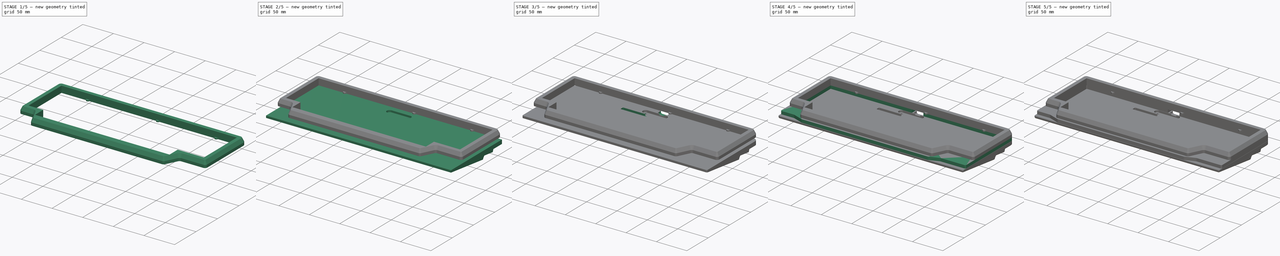
[diagram: build sequence overview — one tinted view per stage of 5, left to right]
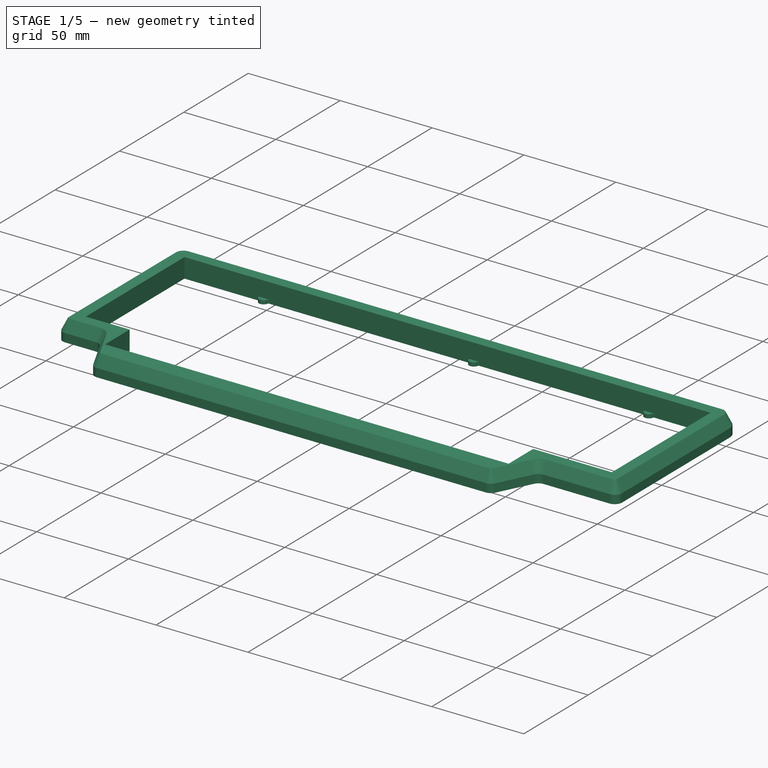
[diagram: stage 1 of 5 — iso view after this stage's code; geometry added in this stage tinted green]
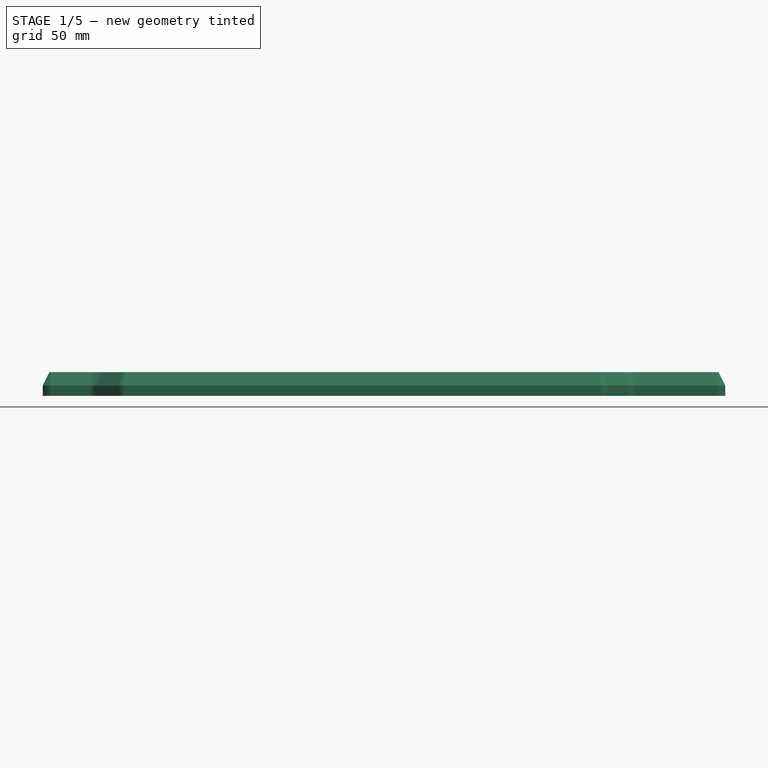
[diagram: stage 1 of 5 — front view after this stage's code; geometry added in this stage tinted green]
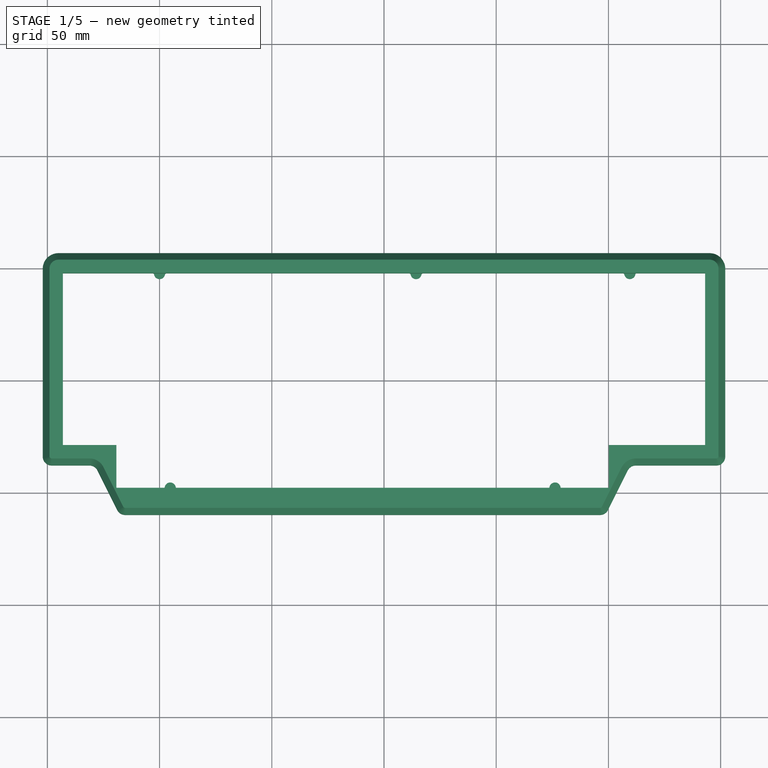
[diagram: stage 1 of 5 — top view after this stage's code; geometry added in this stage tinted green]
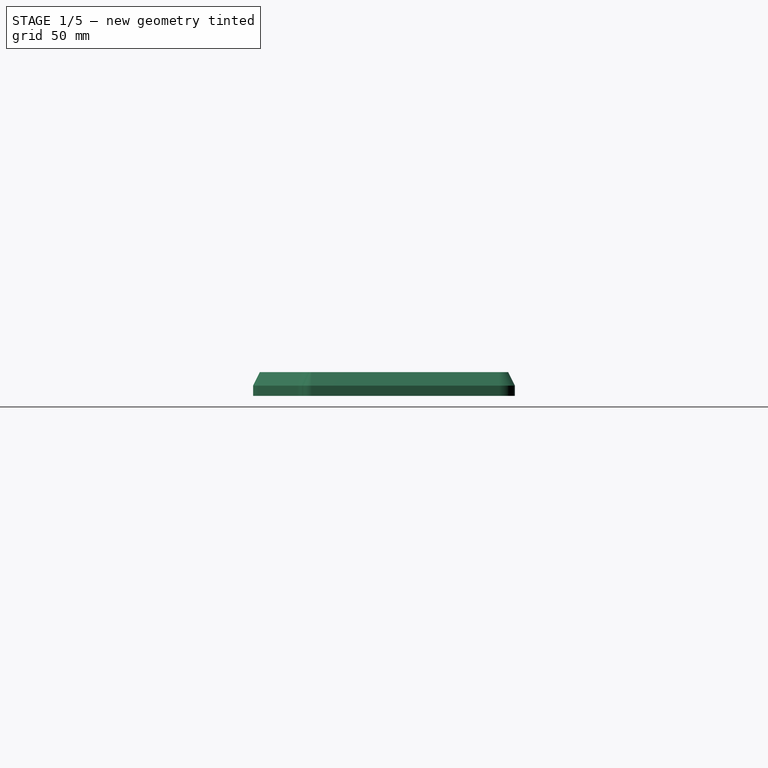
[diagram: stage 1 of 5 — right view after this stage's code; geometry added in this stage tinted green]
FCSTD DOCUMENT  (FreeCAD 0.21R33668 +26 (Git))
Label: Cr0wn60
License: All rights reserved
LicenseURL: http://en.wikipedia.org/wiki/All_rights_reserved
objects: Sketcher::SketchObject×15, PartDesign::Fillet×8, PartDesign::Pad×6, PartDesign::Hole×5, PartDesign::Pocket×4, PartDesign::Chamfer×3, PartDesign::Body×3, App::Part×3, Spreadsheet::Sheet×1, Part::Feature×1
note: 71 computed .brp shape members not serialized (recipe doc carries the construction recipe); baked Part::Feature solids carry a one-line shape summary decoded from their .brp

FEATURE [Spreadsheet::Sheet] Spreadsheet
  cells = A2='kp; B2(kp)=19.05; A3='err; B3(err)=0.2; A4='cw; B4(cw)=9; A5='bc; B5(bc)=15; A6='br; B6(br)=5; A7='lbl; B7(lbl)=1.5; A8='rbl; B8(rbl)=2.5; A9='bt; B9(bt)=1.6; A10='kt; B10(kt)=5; A11='ct; B11(ct)=5; A12='led; B12(led)=1; A13='p1; B13(p1)=2.25; A14='p2; B14(p2)=1.75; A15='p3; B15(p3)=6.75; A16='p4; B16(p4)=1.25; A17='p5; B17(p5)=1.25
FEATURE [Sketcher::SketchObject] Sketch
  FullyConstrained = true
  MapMode = 5
  Support = -> [XY_Plane001]
  expr: Constraints[16] = Spreadsheet.kp
  expr: Constraints[17] = Spreadsheet.kp * 4 + Spreadsheet.err * 2
  expr: Constraints[18] = Spreadsheet.kp
  expr: Constraints[19] = Spreadsheet.kp * Spreadsheet.bc + Spreadsheet.err * 2
  expr: Constraints[20] = Spreadsheet.kp * 1.25
  expr: Constraints[21] = Spreadsheet.kp * 2.25
  expr: Constraints[36] = Spreadsheet.kp * Spreadsheet.bc + (Spreadsheet.err + Spreadsheet.cw) * 2
  expr: Constraints[37] = Spreadsheet.cw
  expr: Constraints[38] = Spreadsheet.cw
  expr: Constraints[39] = Spreadsheet.kp * Spreadsheet.br + (Spreadsheet.err + Spreadsheet.cw) * 2
  expr: Constraints[53] = Spreadsheet.kp * (Spreadsheet.br - 1) + (Spreadsheet.err + Spreadsheet.cw) * 2
  expr: Constraints[59] = Spreadsheet.kp / 2
  expr: Constraints[60] = Spreadsheet.kp / 2
  sketch-geometry (23):
    g0: LineSegment StartX=-143.075 StartY=47.825 StartZ=0 EndX=143.075 EndY=47.825 EndZ=0
    g1: LineSegment StartX=143.075 StartY=47.825 StartZ=0 EndX=143.075 EndY=-28.775 EndZ=0
    g2: LineSegment StartX=143.075 StartY=-28.775 StartZ=0 EndX=100.213 EndY=-28.775 EndZ=0
    g3: LineSegment StartX=100.213 StartY=-28.775 StartZ=0 EndX=100.213 EndY=-47.825 EndZ=0
    g4: LineSegment StartX=100.213 StartY=-47.825 StartZ=0 EndX=-119.263 EndY=-47.825 EndZ=0
    g5: LineSegment StartX=-119.262 StartY=-47.825 StartZ=0 EndX=-119.262 EndY=-28.775 EndZ=0
    g6: LineSegment StartX=-119.262 StartY=-28.775 StartZ=0 EndX=-143.075 EndY=-28.775 EndZ=0
    g7: LineSegment StartX=-143.075 StartY=-28.775 StartZ=0 EndX=-143.075 EndY=47.825 EndZ=0
    g8: LineSegment StartX=-152.075 StartY=56.825 StartZ=0 EndX=152.075 EndY=56.825 EndZ=0
    g9: LineSegment StartX=152.075 StartY=56.825 StartZ=0 EndX=152.075 EndY=-56.825 EndZ=0
    g10: LineSegment StartX=152.075 StartY=-56.825 StartZ=0 EndX=-152.075 EndY=-56.825 EndZ=0
    g11: LineSegment StartX=-152.075 StartY=-56.825 StartZ=0 EndX=-152.075 EndY=56.825 EndZ=0
    g12: LineSegment StartX=-152.075 StartY=56.825 StartZ=0 EndX=152.075 EndY=-56.825 EndZ=0
    g13: LineSegment StartX=152.075 StartY=56.825 StartZ=0 EndX=-152.075 EndY=-56.825 EndZ=0
    g14: LineSegment StartX=-152.075 StartY=56.825 StartZ=0 EndX=-152.075 EndY=-37.775 EndZ=0
    g15: LineSegment StartX=-152.075 StartY=-37.775 StartZ=0 EndX=-128.787 EndY=-37.775 EndZ=0
    g16: LineSegment StartX=-128.787 StartY=-37.775 StartZ=0 EndX=-117.762 EndY=-59.825 EndZ=0
    g17: LineSegment StartX=-117.762 StartY=-59.825 StartZ=0 EndX=98.7125 EndY=-59.825 EndZ=0
    g18: LineSegment StartX=98.7125 StartY=-59.825 StartZ=0 EndX=109.738 EndY=-37.775 EndZ=0
    g19: LineSegment StartX=109.738 StartY=-37.775 StartZ=0 EndX=152.075 EndY=-37.775 EndZ=0
    g20: LineSegment StartX=152.075 StartY=-37.775 StartZ=0 EndX=152.075 EndY=56.825 EndZ=0
    g21: GeomPoint X=-119.262 Y=-56.825 Z=0
    g22: GeomPoint X=100.213 Y=-56.825 Z=0
  constraints (64):
    c: Horizontal(g0)
    c: Coincident(g1,g0)
    c: Vertical(g1)
    c: Coincident(g2,g1)
    c: Horizontal(g2)
    c: Coincident(g3,g2)
    c: Vertical(g3)
    c: Coincident(g4,g3)
    c: Horizontal(g4)
    c: Coincident(g5,g4)
    c: Vertical(g5)
    c: Coincident(g6,g5)
    c: Horizontal(g6)
    c: Coincident(g7,g6)
    c: Coincident(g7,g0)
    c: Vertical(g7)
    c: Distance(g5) = 19.05
    c: Distance(g7) = 76.6
    c: Distance(g3) = 19.05
    c: Distance(g0) = 286.15
    c: Distance(g6) = 23.8125
    c: Distance(g2) = 42.8625
    c: Horizontal(g8)
    c: Coincident(g9,g8)
    c: Vertical(g9)
    c: Coincident(g10,g9)
    c: Horizontal(g10)
    c: Coincident(g11,g10)
    c: Coincident(g11,g8)
    c: Vertical(g11)
    c: Coincident(g12,g8)
    c: Coincident(g12,g9)
    c: Coincident(g13,g8)
    c: Coincident(g13,g10)
    c: PointOnObject(g-1,g12)
    c: PointOnObject(g-1,g13)
    c: Distance(g8) = 304.15
    c: DistanceY(g0,g8) = 9
    c: DistanceX(g8,g0) = 9
    c: Distance(g11) = 113.65
    c: Coincident(g14,g8)
    c: Vertical(g14)
    c: Coincident(g15,g14)
    c: Horizontal(g15)
    c: Coincident(g16,g15)
    c: Coincident(g17,g16)
    c: Horizontal(g17)
    c: Coincident(g18,g17)
    c: Coincident(g19,g18)
    c: Horizontal(g19)
    c: Coincident(g20,g19)
    c: Coincident(g20,g8)
    c: Vertical(g20)
    c: Distance(g14) = 94.6
    c: Equal(g14,g20)
    c: PointOnObject(g21,g16)
    c: PointOnObject(g22,g18)
    c: PointOnObject(g21,g10)
    c: PointOnObject(g22,g10)
    c: DistanceX(g15,g21) = 9.525
    c: DistanceX(g22,g18) = 9.525
    c: Distance(g16,g10) = 3
    c: PointOnObject(g21,g5)
    c: PointOnObject(g22,g3)
FEATURE [PartDesign::Pad] Pad
  Direction = (0,0,1)
  Length = 10.6
  Length2 = 100
  Profile = -> Sketch
  Refine = true
  Type = 0
FEATURE [Sketcher::SketchObject] Sketch011
  ExternalGeometry = -> [Pad]
  FullyConstrained = true
  MapMode = 5
  Placement = pos=(0,0,0) rot=(1,0,0;3.14159rad)
  Support = -> [Pad]
  expr: Constraints[46] = Spreadsheet.kp * 1.75 + Spreadsheet.err
  expr: Constraints[61] = Spreadsheet.kp * 2.25 + Spreadsheet.err
  expr: Constraints[62] = Spreadsheet.kp * 6.75 + Spreadsheet.err
  expr: Constraints[68] = Spreadsheet.kp * 1.25 + Spreadsheet.err
  expr: Constraints[74] = Spreadsheet.kp * 1.25 + Spreadsheet.err
  sketch-geometry (20):
    g0: ArcOfCircle CenterX=14.2875 CenterY=-47.825 CenterZ=0 NormalX=0 NormalY=0 NormalZ=1 AngleXU=0 Radius=2.5 StartAngle=0.167448 EndAngle=2.97414
    g1: ArcOfCircle CenterX=109.538 CenterY=-47.825 CenterZ=0 NormalX=0 NormalY=0 NormalZ=1 AngleXU=0 Radius=2.5 StartAngle=0.167448 EndAngle=2.97414
    g2: ArcOfCircle CenterX=-100.012 CenterY=-47.825 CenterZ=0 NormalX=0 NormalY=0 NormalZ=1 AngleXU=0 Radius=2.5 StartAngle=0.167448 EndAngle=2.97414
    g3: ArcOfCircle CenterX=76.2 CenterY=47.825 CenterZ=0 NormalX=0 NormalY=0 NormalZ=1 AngleXU=0 Radius=2.5 StartAngle=3.30904 EndAngle=6.11574
    g4: ArcOfCircle CenterX=-95.25 CenterY=47.825 CenterZ=0 NormalX=0 NormalY=0 NormalZ=1 AngleXU=0 Radius=2.5 StartAngle=3.30904 EndAngle=6.11574
    g5: ArcOfCircle CenterX=-102.971 CenterY=-47.325 CenterZ=0 NormalX=0 NormalY=0 NormalZ=1 AngleXU=0 Radius=0.5 StartAngle=4.71239 EndAngle=6.11574
    g6: ArcOfCircle CenterX=-97.0545 CenterY=-47.325 CenterZ=0 NormalX=0 NormalY=0 NormalZ=1 AngleXU=0 Radius=0.5 StartAngle=3.30904 EndAngle=4.71239
    g7: ArcOfCircle CenterX=11.3295 CenterY=-47.325 CenterZ=0 NormalX=0 NormalY=0 NormalZ=1 AngleXU=0 Radius=0.5 StartAngle=4.71239 EndAngle=6.11574
    g8: ArcOfCircle CenterX=17.2455 CenterY=-47.325 CenterZ=0 NormalX=0 NormalY=0 NormalZ=1 AngleXU=0 Radius=0.5 StartAngle=3.30904 EndAngle=4.71239
    g9: ArcOfCircle CenterX=106.579 CenterY=-47.325 CenterZ=0 NormalX=0 NormalY=0 NormalZ=1 AngleXU=0 Radius=0.5 StartAngle=4.71239 EndAngle=6.11574
    g10: ArcOfCircle CenterX=112.496 CenterY=-47.325 CenterZ=0 NormalX=0 NormalY=0 NormalZ=1 AngleXU=0 Radius=0.5 StartAngle=3.30904 EndAngle=4.71239
    g11: ArcOfCircle CenterX=-98.208 CenterY=47.325 CenterZ=0 NormalX=0 NormalY=0 NormalZ=1 AngleXU=0 Radius=0.5 StartAngle=0.167448 EndAngle=1.5708
    g12: ArcOfCircle CenterX=-92.292 CenterY=47.325 CenterZ=0 NormalX=0 NormalY=0 NormalZ=1 AngleXU=0 Radius=0.5 StartAngle=1.5708 EndAngle=2.97414
    g13: ArcOfCircle CenterX=73.242 CenterY=47.325 CenterZ=0 NormalX=0 NormalY=0 NormalZ=1 AngleXU=0 Radius=0.5 StartAngle=0.167448 EndAngle=1.5708
    g14: ArcOfCircle CenterX=79.158 CenterY=47.325 CenterZ=0 NormalX=0 NormalY=0 NormalZ=1 AngleXU=0 Radius=0.5 StartAngle=1.5708 EndAngle=2.97414
    g15: LineSegment StartX=-98.208 StartY=47.825 StartZ=0 EndX=-92.292 EndY=47.825 EndZ=0
    g16: LineSegment StartX=73.242 StartY=47.825 StartZ=0 EndX=79.158 EndY=47.825 EndZ=0
    g17: LineSegment StartX=106.579 StartY=-47.825 StartZ=0 EndX=112.496 EndY=-47.825 EndZ=0
    g18: LineSegment StartX=11.3295 StartY=-47.825 StartZ=0 EndX=17.2455 EndY=-47.825 EndZ=0
    g19: LineSegment StartX=-102.971 StartY=-47.825 StartZ=0 EndX=-97.0545 EndY=-47.825 EndZ=0
  constraints (75):
    c: Radius(g2) = 2.5
    c: Equal(g2,g1)
    c: Equal(g1,g0)
    c: Equal(g0,g3)
    c: Equal(g3,g4)
    c: Coincident(g5,g2)
    c: Radius(g5) = 0.5
    c: Coincident(g6,g2)
    c: Tangent(g5,g2,g2) = 1.5708
    c: Equal(g5,g6)
    c: Tangent(g6,g2,g2) = 1.5708
    c: Coincident(g7,g0)
    c: Coincident(g8,g0)
    c: Tangent(g0,g7,g0) = 1.5708
    c: Tangent(g0,g8,g0) = 1.5708
    c: Coincident(g9,g1)
    c: Coincident(g10,g1)
    c: Tangent(g1,g9,g1) = 1.5708
    c: Tangent(g1,g10,g1) = 1.5708
    c: Coincident(g11,g4)
    c: Coincident(g12,g4)
    c: Coincident(g14,g3)
    c: Tangent(g14,g3,g3) = 1.5708
    c: Coincident(g13,g3)
    c: Tangent(g13,g3,g3) = 1.5708
    c: Tangent(g11,g4,g4) = 1.5708
    c: Tangent(g12,g4,g4) = 1.5708
    c: Equal(g11,g12)
    c: Equal(g12,g13)
    c: Equal(g13,g14)
    c: Equal(g14,g10)
    c: Equal(g10,g9)
    c: Equal(g9,g8)
    c: Equal(g8,g7)
    c: Equal(g7,g6)
    c: Coincident(g15,g11)
    c: Coincident(g15,g12)
    c: Coincident(g16,g13)
    c: Coincident(g16,g14)
    c: Coincident(g17,g9)
    c: Coincident(g17,g10)
    c: Coincident(g18,g7)
    c: Coincident(g18,g8)
    c: Coincident(g19,g5)
    c: Coincident(g19,g6)
    c: PointOnObject(g1,g-3)
    c: Distance(g1,g-3) = 33.5375
    c: PointOnObject(g10,g-3)
    c: Tangent(g10,g-3,g10) = -1.5708
    c: PointOnObject(g9,g-3)
    c: Tangent(g9,g-3,g9) = -1.5708
    c: Tangent(g8,g-3,g8) = -1.5708
    c: Tangent(g7,g-3,g7) = -1.5708
    c: PointOnObject(g0,g-3)
    c: PointOnObject(g8,g-3)
    c: PointOnObject(g7,g-3)
    c: PointOnObject(g6,g-3)
    c: PointOnObject(g5,g-3)
    c: Tangent(g5,g-3,g5) = -1.5708
    c: Tangent(g6,g-3,g6) = -1.5708
    c: PointOnObject(g2,g19)
    c: Distance(g2,g-3) = 43.0625
    c: Distance(g-3,g0) = 128.787
    c: PointOnObject(g3,g16)
    c: PointOnObject(g14,g-4)
    c: PointOnObject(g13,g-4)
    c: Tangent(g13,g-4,g13) = -1.5708
    c: Tangent(g14,g-4,g14) = -1.5708
    c: Distance(g3,g-4) = 24.0125
    c: PointOnObject(g4,g15)
    c: PointOnObject(g11,g-4)
    c: PointOnObject(g12,g-4)
    c: Tangent(g12,g-4,g12) = -1.5708
    c: Tangent(g11,g-4,g11) = -1.5708
    c: DistanceX(g-4,g4) = 24.0125
FEATURE [PartDesign::Pad] Pad005
  BaseFeature = -> Pad
  Direction = (0,0,-1)
  Length = 2
  Length2 = 100
  Profile = -> Sketch011
  Refine = true
  Reversed = true
  Type = 0
FEATURE [PartDesign::Body] Body001
  Group = -> [Sketch001,Pad001,Fillet004,Fillet013,Fillet005,Fillet006,Sketch014,Hole003]
  Origin = -> Origin003
  Tip = -> Hole003
FEATURE [App::Part] Part001  label="MiddlePlate"
  Group = -> [Body001]
  Origin = -> Origin002
FEATURE [PartDesign::Fillet] Fillet
  Base = -> Pad005 [Edge28,Edge26,Edge8,Edge30,Edge5,Edge24]
  BaseFeature = -> Pad005
  Radius = 4
  SupportTransform = false
  UseAllEdges = false
FEATURE [PartDesign::Fillet] Fillet014
  Base = -> Fillet [Edge48,Edge3]
  BaseFeature = -> Fillet
  Radius = 7
  SupportTransform = false
  UseAllEdges = false
FEATURE [PartDesign::Chamfer] Chamfer
  Angle = 45
  Base = -> Fillet014 [Edge61]
  BaseFeature = -> Fillet014
  ChamferType = 1
  FlipDirection = false
  Size = 3
  Size2 = 6
  SupportTransform = false
  UseAllEdges = false
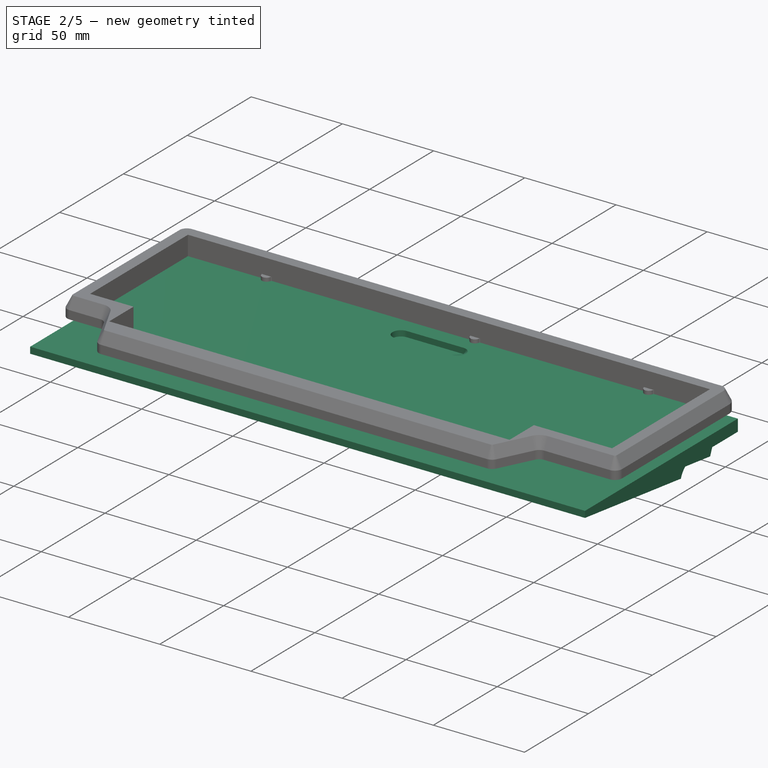
[diagram: stage 2 of 5 — iso view after this stage's code; geometry added in this stage tinted green]
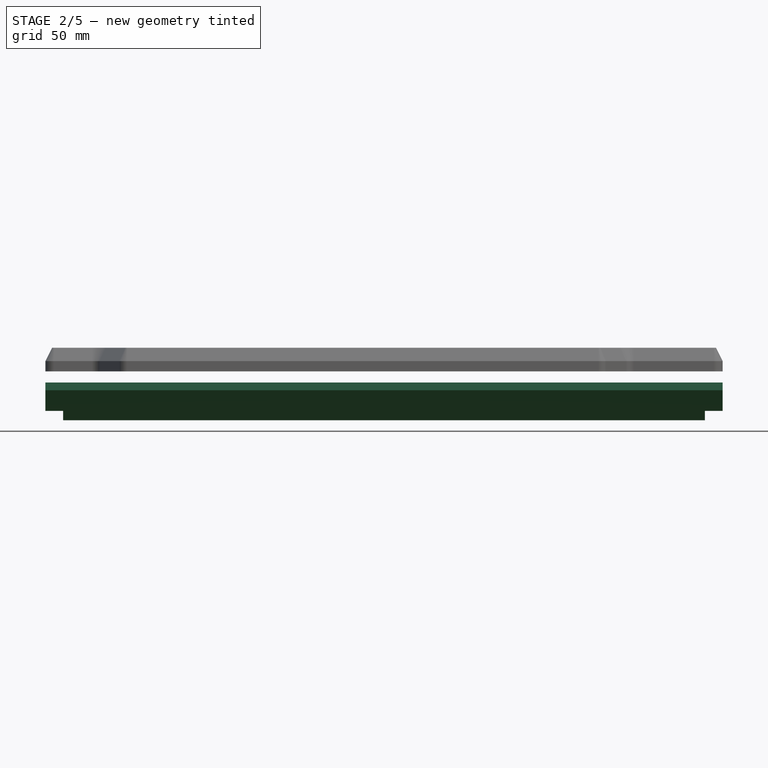
[diagram: stage 2 of 5 — front view after this stage's code; geometry added in this stage tinted green]
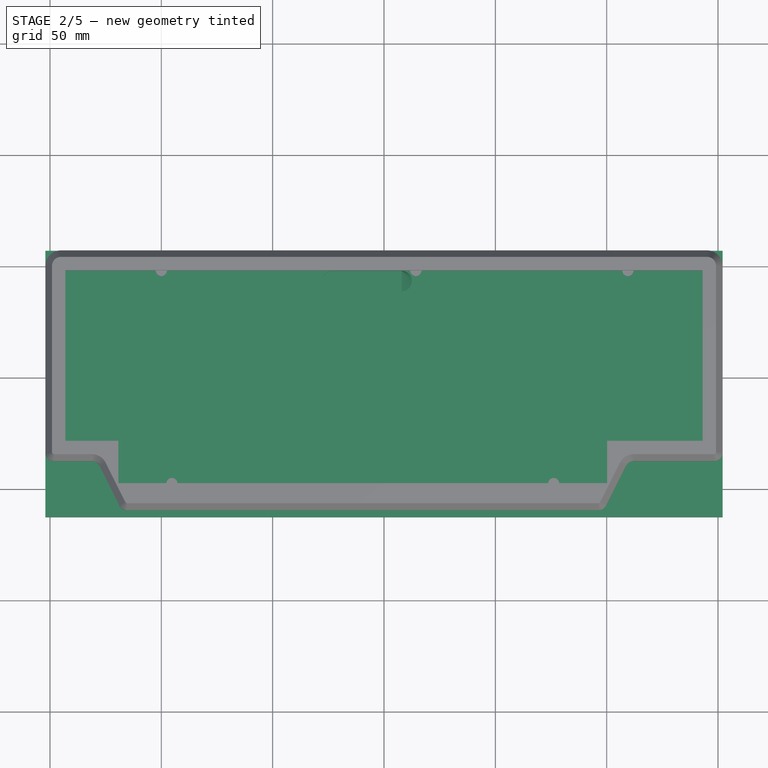
[diagram: stage 2 of 5 — top view after this stage's code; geometry added in this stage tinted green]
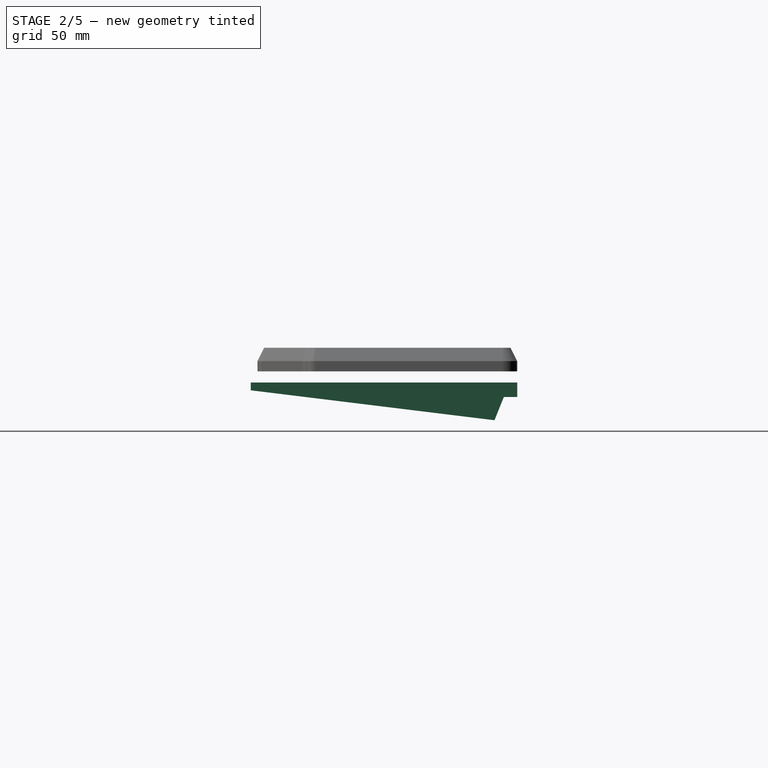
[diagram: stage 2 of 5 — right view after this stage's code; geometry added in this stage tinted green]
FEATURE [Sketcher::SketchObject] Sketch002
  AttachmentOffset = pos=(0,0,-5) rot=(0,0,1;0rad)
  FullyConstrained = true
  MapMode = 5
  Placement = pos=(0,0,-5) rot=(0,0,1;0rad)
  Support = -> [XY_Plane005]
  expr: .AttachmentOffset.Base.z = Spreadsheet.ct * -1
  expr: Constraints[8] = Spreadsheet.kp * Spreadsheet.br + (Spreadsheet.cw + Spreadsheet.err) * 2
  expr: Constraints[9] = Spreadsheet.kp * Spreadsheet.bc + (Spreadsheet.err + Spreadsheet.cw) * 2
  sketch-geometry (7):
    g0: LineSegment StartX=-152.075 StartY=56.825 StartZ=0 EndX=152.075 EndY=56.825 EndZ=0
    g1: LineSegment StartX=152.075 StartY=56.825 StartZ=0 EndX=152.075 EndY=-56.825 EndZ=0
    g2: LineSegment StartX=152.075 StartY=-56.825 StartZ=0 EndX=-152.075 EndY=-56.825 EndZ=0
    g3: LineSegment StartX=-152.075 StartY=-56.825 StartZ=0 EndX=-152.075 EndY=56.825 EndZ=0
    g4: LineSegment StartX=-152.075 StartY=-56.825 StartZ=0 EndX=-152.075 EndY=-62.825 EndZ=0
    g5: LineSegment StartX=-152.075 StartY=-62.825 StartZ=0 EndX=152.075 EndY=-62.825 EndZ=0
    g6: LineSegment StartX=152.075 StartY=-62.825 StartZ=0 EndX=152.075 EndY=-56.825 EndZ=0
  constraints (18):
    c: Coincident(g0,g1)
    c: Coincident(g1,g2)
    c: Coincident(g2,g3)
    c: Coincident(g3,g0)
    c: Horizontal(g2)
    c: Vertical(g3)
    c: Symmetric(g0,g0,g-2)
    c: Symmetric(g1,g0,g-1)
    c: Distance(g3) = 113.65
    c: Distance(g2) = 304.15
    c: Coincident(g4,g3)
    c: Vertical(g4)
    c: Coincident(g5,g4)
    c: Horizontal(g5)
    c: Coincident(g6,g5)
    c: Coincident(g6,g1)
    c: Vertical(g6)
    c: Distance(g4) = 6
FEATURE [PartDesign::Pad] Pad002
  Direction = (0,0,1)
  Length = 3.5
  Length2 = 100
  Profile = -> Sketch002
  Refine = true
  Reversed = true
  Type = 0
FEATURE [Sketcher::SketchObject] Sketch003
  ExternalGeometry = -> [Pad002]
  FullyConstrained = true
  MapMode = 5
  Placement = pos=(152.075,0,0) rot=(0.57735,0.57735,0.57735;2.0944rad)
  Support = -> [Pad002]
  sketch-geometry (5):
    g0: LineSegment StartX=-62.825 StartY=-8.5 StartZ=0 EndX=12.2642 EndY=-17.7198 EndZ=0
    g1: ArcOfCircle CenterX=20.825 CenterY=-20.5014 CenterZ=0 NormalX=0 NormalY=0 NormalZ=1 AngleXU=0 Radius=9.00137 StartAngle=1.5708 EndAngle=2.82743
    g2: LineSegment StartX=-62.825 StartY=-8.5 StartZ=0 EndX=56.825 EndY=-8.5 EndZ=0
    g3: LineSegment StartX=20.825 StartY=-11.5 StartZ=0 EndX=56.825 EndY=-11.5 EndZ=0
    g4: LineSegment StartX=56.825 StartY=-8.5 StartZ=0 EndX=56.825 EndY=-11.5 EndZ=0
  constraints (14):
    c: Coincident(g1,g0)
    c: Angle(g1) = 1.25664
    c: Coincident(g2,g0)
    c: Horizontal(g3)
    c: Coincident(g4,g2)
    c: Coincident(g4,g3)
    c: Vertical(g4)
    c: Coincident(g0,g-3)
    c: Coincident(g2,g-3)
    c: Distance(g4) = 3
    c: Angle(g0,g2) = 0.122173
    c: Coincident(g1,g3)
    c: Tangent(g3,g1,g1) = 1.5708
    c: Distance(g3) = 36
FEATURE [PartDesign::Pad] Pad003
  BaseFeature = -> Pad002
  Direction = (1,0,0)
  Length = 10
  Length2 = 100
  Profile = -> Sketch003
  ReferenceAxis = -> Sketch003 [N_Axis]
  Refine = true
  Type = 3
  UpToFace = -> Pad002 [Face6]
FEATURE [Sketcher::SketchObject] Sketch004
  AttachmentOffset = pos=(0,0,-8) rot=(0,0,1;0rad)
  ExternalGeometry = -> [Pad003]
  FullyConstrained = true
  MapMode = 5
  Placement = pos=(144.075,-9.8e-15,-7.445e-13) rot=(0.57735,0.57735,0.57735;2.0944rad)
  Support = -> [Pad003]
  sketch-geometry (4):
    g0: LineSegment StartX=12.2642 StartY=-17.7198 StartZ=0 EndX=46.6083 EndY=-21.9367 EndZ=0
    g1: ArcOfCircle CenterX=20.825 CenterY=-20.5014 CenterZ=0 NormalX=0 NormalY=0 NormalZ=1 AngleXU=0 Radius=9.00137 StartAngle=1.5708 EndAngle=2.82743
    g2: LineSegment StartX=20.825 StartY=-11.5 StartZ=0 EndX=50.825 EndY=-11.5 EndZ=0
    g3: LineSegment StartX=46.6083 StartY=-21.9367 StartZ=0 EndX=50.825 EndY=-11.5 EndZ=0
  constraints (11):
    c: Coincident(g1,g-4)
    c: Coincident(g1,g-4)
    c: Coincident(g1,g0)
    c: Angle(g0,g-3) = 0.122173
    c: Angle(g1) = 1.25664
    c: Horizontal(g2)
    c: Coincident(g3,g0)
    c: Coincident(g3,g2)
    c: Angle(g3,g0) = 1.8326
    c: Coincident(g2,g1)
    c: Distance(g2,g-3) = 6
FEATURE [PartDesign::Pad] Pad004
  BaseFeature = -> Pad003
  Direction = (1,-1e-16,-5.3e-15)
  Length = 10
  Length2 = 100
  Offset = 8
  Profile = -> Sketch004
  Refine = true
  Type = 3
  UpToFace = -> Pad003 [Face7]
FEATURE [Sketcher::SketchObject] Sketch005
  ExternalGeometry = -> [Pad004]
  FullyConstrained = true
  MapMode = 5
  Placement = pos=(0,0,-5) rot=(0,0,1;0rad)
  Support = -> [Pad004]
  expr: Constraints[15] = 40 + Spreadsheet.err
  expr: Constraints[3] = 4.5 + Spreadsheet.err / 2
  expr: Constraints[4] = Spreadsheet.cw
  sketch-geometry (9):
    g0: LineSegment StartX=-23.1 StartY=47.825 StartZ=0 EndX=7.9 EndY=47.825 EndZ=0
    g1: ArcOfCircle CenterX=7.9 CenterY=43.225 CenterZ=0 NormalX=0 NormalY=0 NormalZ=1 AngleXU=0 Radius=4.6 StartAngle=4.71239 EndAngle=7.85398
    g2: LineSegment StartX=7.9 StartY=38.625 StartZ=0 EndX=-23.1 EndY=38.625 EndZ=0
    g3: ArcOfCircle CenterX=-23.1 CenterY=43.225 CenterZ=0 NormalX=0 NormalY=0 NormalZ=1 AngleXU=0 Radius=4.6 StartAngle=1.5708 EndAngle=4.71239
    g4: Circle CenterX=8.9 CenterY=43.225 CenterZ=0 NormalX=0 NormalY=0 NormalZ=1 AngleXU=0 Radius=1.6
    g5: Circle CenterX=-24.1 CenterY=43.225 CenterZ=0 NormalX=0 NormalY=0 NormalZ=1 AngleXU=0 Radius=1.6
    g6: LineSegment StartX=-27.7 StartY=43.225 StartZ=0 EndX=12.5 EndY=43.225 EndZ=0
    g7: LineSegment StartX=-24.1 StartY=43.225 StartZ=0 EndX=-23.1 EndY=47.825 EndZ=0
    g8: LineSegment StartX=8.9 StartY=43.225 StartZ=0 EndX=7.9 EndY=38.625 EndZ=0
  constraints (24):
    c: Tangent(g0,g1) = 1.5708
    c: Horizontal(g2)
    c: Tangent(g3,g0) = 1.5708
    c: Radius(g1) = 4.6
    c: Distance(g0,g-3) = 9
    c: Diameter(g4) = 3.2
    c: Diameter(g5) = 3.2
    c: Distance(g4,g-2) = 8.9
    c: DistanceX(g5,g4) = 33
    c: Tangent(g3,g2) = 1.5708
    c: Tangent(g1,g2) = 1.5708
    c: PointOnObject(g6,g3)
    c: PointOnObject(g6,g1)
    c: Horizontal(g6)
    c: PointOnObject(g3,g6)
    c: Distance(g6) = 40.2
    c: PointOnObject(g5,g6)
    c: PointOnObject(g4,g6)
    c: Horizontal(g0)
    c: Coincident(g7,g5)
    c: Coincident(g7,g0)
    c: Coincident(g8,g4)
    c: Coincident(g8,g1)
    c: Equal(g7,g8)
FEATURE [PartDesign::Pocket] Pocket
  BaseFeature = -> Pad004
  Direction = (0,0,-1)
  Length = 3.1
  Length2 = 100
  Profile = -> Sketch005
  Refine = true
  Type = 0
FEATURE [Sketcher::SketchObject] Sketch020
  FullyConstrained = false
  MapMode = 5
  Placement = pos=(0,0,0) rot=(1,0,0;3.14159rad)
  Support = -> [Chamfer]
  expr: Constraints[12] = -Spreadsheet.kp * 7.5 - Spreadsheet.cw / 2 - Spreadsheet.err
  expr: Constraints[13] = -Spreadsheet.kp * 5
  expr: Constraints[14] = Spreadsheet.kp
  expr: Constraints[15] = Spreadsheet.kp * 2.5 + Spreadsheet.cw / 2 + Spreadsheet.err
  expr: Constraints[4] = -Spreadsheet.kp * 2.5 - Spreadsheet.cw / 2 - Spreadsheet.err
  expr: Constraints[8] = -Spreadsheet.kp
  sketch-geometry (10):
    g0: Circle CenterX=95.25 CenterY=52.325 CenterZ=0 NormalX=0 NormalY=0 NormalZ=1 AngleXU=0 Radius=16.78
    g1: Circle CenterX=147.575 CenterY=19.05 CenterZ=0 NormalX=0 NormalY=0 NormalZ=1 AngleXU=0 Radius=10.5092
    g2: Circle CenterX=147.575 CenterY=-52.325 CenterZ=0 NormalX=0 NormalY=0 NormalZ=1 AngleXU=0 Radius=14.1786
    g3: Circle CenterX=19.05 CenterY=-52.325 CenterZ=0 NormalX=0 NormalY=0 NormalZ=1 AngleXU=0 Radius=7.97095
    g4: Circle CenterX=-19.05 CenterY=-52.325 CenterZ=0 NormalX=0 NormalY=0 NormalZ=1 AngleXU=0 Radius=12.0495
    g5: Circle CenterX=-147.575 CenterY=-52.325 CenterZ=0 NormalX=0 NormalY=0 NormalZ=1 AngleXU=0 Radius=10.4737
    g6: Circle CenterX=-147.575 CenterY=19.05 CenterZ=0 NormalX=0 NormalY=0 NormalZ=1 AngleXU=0 Radius=8.6
    g7: Circle CenterX=-95.25 CenterY=52.325 CenterZ=0 NormalX=0 NormalY=0 NormalZ=1 AngleXU=0 Radius=12.2284
    g8: LineSegment StartX=-147.575 StartY=-52.325 StartZ=0 EndX=-19.05 EndY=-52.325 EndZ=0
    g9: LineSegment StartX=-147.575 StartY=-52.325 StartZ=0 EndX=-147.575 EndY=19.05 EndZ=0
  constraints (16):
    c: Symmetric(g7,g0,g-2)
    c: Symmetric(g1,g6,g-2)
    c: Symmetric(g4,g3,g-2)
    c: Symmetric(g2,g5,g-2)
    c: DistanceY(g-1,g5) = -52.325
    c: Coincident(g8,g5)
    c: Coincident(g8,g4)
    c: Horizontal(g8)
    c: DistanceX(g-2,g4) = -19.05
    c: Coincident(g9,g5)
    c: Coincident(g9,g6)
    c: Vertical(g9)
    c: DistanceX(g-2,g5) = -147.575
    c: DistanceX(g-2,g7) = -95.25
    c: DistanceY(g-1,g6) = 19.05
    c: DistanceY(g-1,g7) = 52.325
FEATURE [PartDesign::Hole] Hole007
  BaseFeature = -> Chamfer
  CustomThreadClearance = 0
  Depth = 5
  DepthType = 0
  Diameter = 2.5
  DrillForDepth = false
  DrillPoint = 1
  DrillPointAngle = 118
  HoleCutCountersinkAngle = 90
  HoleCutCustomValues = false
  HoleCutDepth = 0
  HoleCutDiameter = 6.1
  HoleCutType = 0
  ModelThread = false
  Profile = -> Sketch020
  Refine = true
  Tapered = false
  TaperedAngle = 90
  ThreadClass = 0
  ThreadDepth = 5
  ThreadDepthType = 0
  ThreadDirection = 0
  ThreadFit = 0
  ThreadSize = 9
  ThreadType = 1
  Threaded = true
  UseCustomThreadClearance = false
FEATURE [PartDesign::Body] Body
  Group = -> [Sketch,Pad,Sketch011,Pad005,Fillet,Fillet014,Chamfer,Sketch020,Hole007]
  Origin = -> Origin001
  Tip = -> Hole007
FEATURE [App::Part] Part  label="TopCase"
  Group = -> [Body]
  Origin = -> Origin
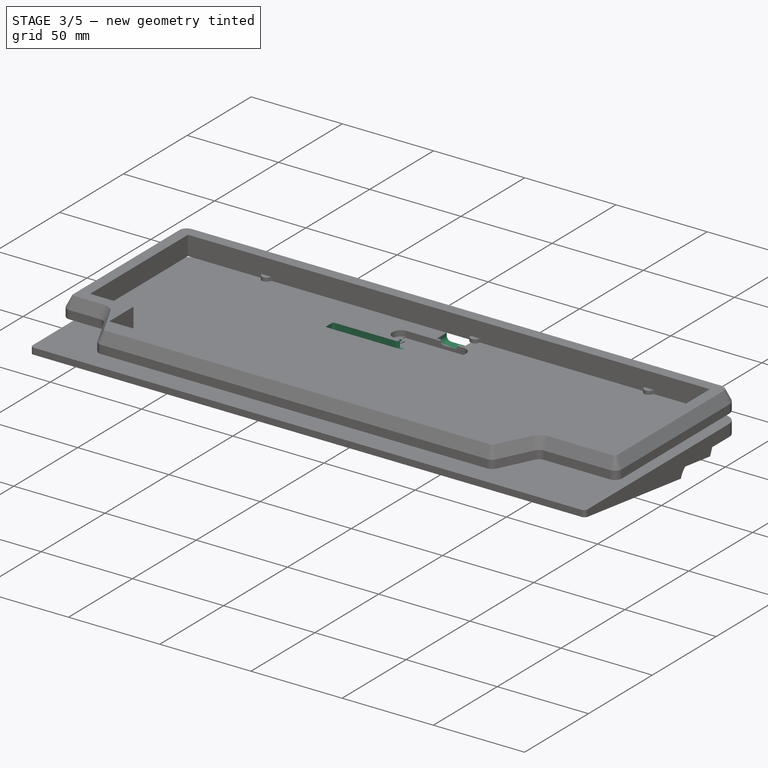
[diagram: stage 3 of 5 — iso view after this stage's code; geometry added in this stage tinted green]
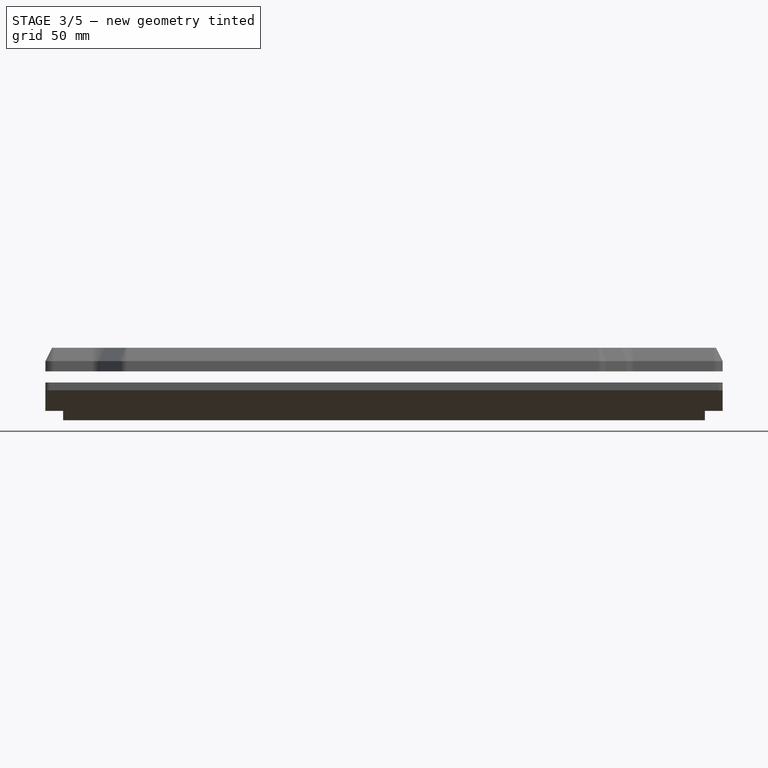
[diagram: stage 3 of 5 — front view after this stage's code; geometry added in this stage tinted green]
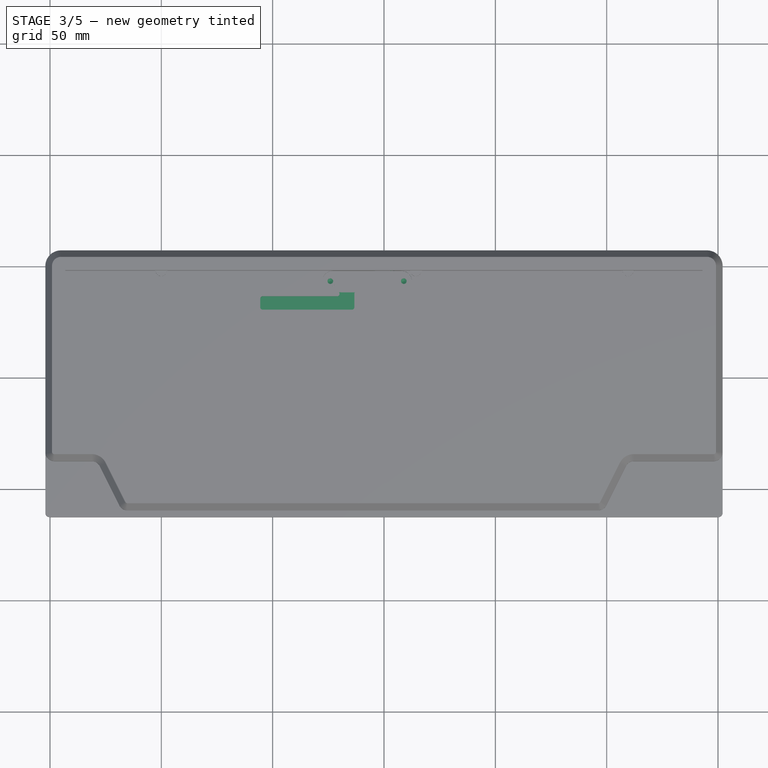
[diagram: stage 3 of 5 — top view after this stage's code; geometry added in this stage tinted green]
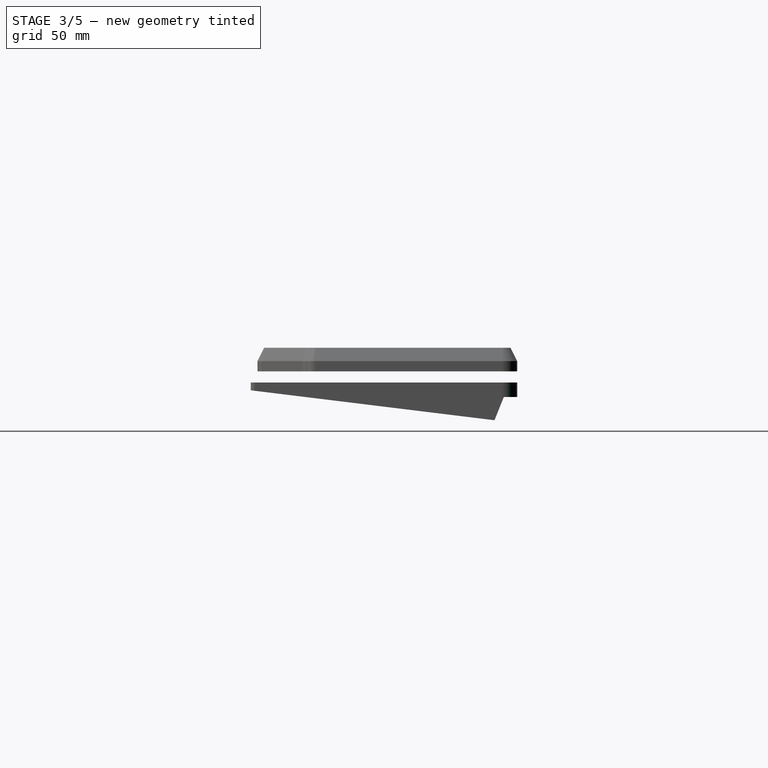
[diagram: stage 3 of 5 — right view after this stage's code; geometry added in this stage tinted green]
FEATURE [Sketcher::SketchObject] Sketch006
  ExternalGeometry = -> [Pocket]
  FullyConstrained = true
  MapMode = 5
  Placement = pos=(0,0,-5) rot=(0,0,1;0rad)
  Support = -> [Pocket]
  expr: Constraints[37] = 6.6 + 1.05 * 2 + Spreadsheet.err
  sketch-geometry (19):
    g0: ArcOfCircle CenterX=8.9 CenterY=43.225 CenterZ=0 NormalX=0 NormalY=0 NormalZ=1 AngleXU=0 Radius=2.5 StartAngle=1.85065 EndAngle=4.43254
    g1: ArcOfCircle CenterX=-24.1 CenterY=43.225 CenterZ=0 NormalX=0 NormalY=0 NormalZ=1 AngleXU=0 Radius=2.5 StartAngle=4.99224 EndAngle=7.57413
    g2: ArcOfCircle CenterX=7.9 CenterY=46.7046 CenterZ=0 NormalX=0 NormalY=0 NormalZ=1 AngleXU=0 Radius=1.12042 StartAngle=4.99224 EndAngle=7.85398
    g3: ArcOfCircle CenterX=7.9 CenterY=39.7454 CenterZ=0 NormalX=0 NormalY=0 NormalZ=1 AngleXU=0 Radius=1.12042 StartAngle=4.71239 EndAngle=7.57413
    g4: ArcOfCircle CenterX=-23.1 CenterY=46.7046 CenterZ=0 NormalX=0 NormalY=0 NormalZ=1 AngleXU=0 Radius=1.12042 StartAngle=1.5708 EndAngle=4.43254
    g5: ArcOfCircle CenterX=-23.1 CenterY=39.7454 CenterZ=0 NormalX=0 NormalY=0 NormalZ=1 AngleXU=0 Radius=1.12042 StartAngle=1.85065 EndAngle=4.71239
    g6: LineSegment StartX=-23.1 StartY=47.825 StartZ=0 EndX=7.9 EndY=47.825 EndZ=0
    g7: LineSegment StartX=7.9 StartY=38.625 StartZ=0 EndX=-12.2 EndY=38.625 EndZ=0
    g8: ArcOfCircle CenterX=-12.2 CenterY=37.5046 CenterZ=0 NormalX=0 NormalY=0 NormalZ=1 AngleXU=0 Radius=1.12042 StartAngle=1.5708 EndAngle=3.14159
    g9: LineSegment StartX=-13.3204 StartY=37.5046 StartZ=0 EndX=-13.3204 EndY=31.5046 EndZ=0
    g10: ArcOfCircle CenterX=-14.4408 CenterY=31.5046 CenterZ=0 NormalX=0 NormalY=0 NormalZ=1 AngleXU=0 Radius=1.12042 StartAngle=4.71239 EndAngle=6.28319
    g11: LineSegment StartX=-21.1 StartY=36.3842 StartZ=0 EndX=-54.4408 EndY=36.3842 EndZ=0
    g12: LineSegment StartX=-14.4408 StartY=30.3842 StartZ=0 EndX=-54.4408 EndY=30.3842 EndZ=0
    g13: ArcOfCircle CenterX=-54.4408 CenterY=35.2637 CenterZ=0 NormalX=0 NormalY=0 NormalZ=1 AngleXU=0 Radius=1.12042 StartAngle=1.5708 EndAngle=3.14159
    g14: ArcOfCircle CenterX=-54.4408 CenterY=31.5046 CenterZ=0 NormalX=0 NormalY=0 NormalZ=1 AngleXU=0 Radius=1.12042 StartAngle=3.14159 EndAngle=4.71239
    g15: LineSegment StartX=-55.5613 StartY=35.2637 StartZ=0 EndX=-55.5613 EndY=31.5046 EndZ=0
    g16: LineSegment StartX=-23.1 StartY=38.625 StartZ=0 EndX=-21.1 EndY=38.625 EndZ=0
    g17: ArcOfCircle CenterX=-21.1 CenterY=37.5046 CenterZ=0 NormalX=0 NormalY=0 NormalZ=1 AngleXU=0 Radius=1.12042 StartAngle=4.71239 EndAngle=7.85398
    g18: LineSegment StartX=-24.1 StartY=43.225 StartZ=0 EndX=-23.1 EndY=43.225 EndZ=0
  constraints (46):
    c: Tangent(g2,g-3) = -1.5708
    c: Tangent(g2,g0) = 1.5708
    c: Tangent(g3,g0) = 1.5708
    c: Tangent(g3,g-3) = -1.5708
    c: Tangent(g4,g-4) = -1.5708
    c: Tangent(g1,g4) = 1.5708
    c: Tangent(g1,g5) = 1.5708
    c: Tangent(g5,g-4) = -1.5708
    c: Equal(g2,g4)
    c: Coincident(g6,g4)
    c: Coincident(g6,g2)
    c: Radius(g1) = 2.5
    c: Coincident(g7,g3)
    c: Horizontal(g7)
    c: Vertical(g9)
    c: Horizontal(g11)
    c: Horizontal(g12)
    c: Vertical(g15)
    c: Tangent(g11,g13) = -1.5708
    c: Tangent(g13,g15) = -1.5708
    c: Tangent(g15,g14) = -1.5708
    c: Tangent(g14,g12) = 1.5708
    c: Tangent(g12,g10) = 1.5708
    c: Tangent(g10,g9) = 1.5708
    c: Tangent(g9,g8) = -1.5708
    c: Tangent(g7,g8) = -1.5708
    c: Equal(g10,g8)
    c: Equal(g10,g14)
    c: Equal(g14,g13)
    c: Horizontal(g16)
    c: Coincident(g16,g5)
    c: Tangent(g16,g17) = 1.5708
    c: Tangent(g11,g17) = 1.5708
    c: DistanceX(g16,g16) = 2
    c: Equal(g17,g5)
    c: Equal(g17,g8)
    c: Radius(g17) = 1.12042
    c: DistanceX(g16,g7) = 8.9
    c: Distance(g9) = 6
    c: DistanceX(g12,g12) = 40
    c: Distance(g0,g-2) = 8.9
    c: Distance(g1,g-2) = 24.1
    c: Coincident(g18,g1)
    c: Coincident(g18,g-4)
    c: Horizontal(g18)
    c: PointOnObject(g0,g18)
FEATURE [PartDesign::Pocket] Pocket001
  BaseFeature = -> Pocket
  Direction = (0,0,-1)
  Length = 3.6
  Length2 = 100
  Profile = -> Sketch006
  ReferenceAxis = -> Sketch006 [N_Axis]
  Refine = true
  Type = 0
FEATURE [Sketcher::SketchObject] Sketch007
  ExternalGeometry = -> [Pocket001]
  FullyConstrained = false
  MapMode = 5
  Placement = pos=(0,0,-8.1) rot=(0,0,1;0rad)
  Support = -> [Pocket001]
  sketch-geometry (2):
    g0: Circle CenterX=8.9 CenterY=43.225 CenterZ=0 NormalX=0 NormalY=0 NormalZ=1 AngleXU=0 Radius=2.22941
    g1: Circle CenterX=-24.1 CenterY=43.225 CenterZ=0 NormalX=0 NormalY=0 NormalZ=1 AngleXU=0 Radius=2.12856
  constraints (2):
    c: Coincident(g1,g-3)
    c: Coincident(g0,g-4)
FEATURE [PartDesign::Hole] Hole
  BaseFeature = -> Pocket001
  CustomThreadClearance = 0
  Depth = 3
  DepthType = 0
  Diameter = 2.5
  DrillForDepth = false
  DrillPoint = 1
  DrillPointAngle = 118
  HoleCutCountersinkAngle = 90
  HoleCutCustomValues = false
  HoleCutDepth = 0
  HoleCutDiameter = 6.1
  HoleCutType = 0
  ModelThread = false
  Profile = -> Sketch007
  Refine = true
  Tapered = false
  TaperedAngle = 90
  ThreadClass = 0
  ThreadDepth = 3
  ThreadDepthType = 0
  ThreadDirection = 0
  ThreadFit = 0
  ThreadSize = 9
  ThreadType = 1
  Threaded = true
  UseCustomThreadClearance = false
FEATURE [Sketcher::SketchObject] Sketch016
  ExternalGeometry = -> [Hole]
  FullyConstrained = true
  MapMode = 5
  Placement = pos=(0,56.825,0) rot=(0,0.707107,0.707107;3.14159rad)
  Support = -> [Hole]
  sketch-geometry (10):
    g0: ArcOfCircle CenterX=-3.2 CenterY=-4.5 CenterZ=0 NormalX=0 NormalY=0 NormalZ=1 AngleXU=0 Radius=1.4 StartAngle=1.5708 EndAngle=3.14159
    g1: LineSegment StartX=-3.2 StartY=-3.1 StartZ=0 EndX=3.2 EndY=-3.1 EndZ=0
    g2: ArcOfCircle CenterX=3.2 CenterY=-4.5 CenterZ=0 NormalX=0 NormalY=0 NormalZ=1 AngleXU=0 Radius=1.4 StartAngle=0 EndAngle=1.5708
    g3: LineSegment StartX=4.6 StartY=-4.5 StartZ=0 EndX=4.6 EndY=-5.3 EndZ=0
    g4: ArcOfCircle CenterX=3.2 CenterY=-5.3 CenterZ=0 NormalX=0 NormalY=0 NormalZ=1 AngleXU=0 Radius=1.4 StartAngle=4.71239 EndAngle=6.28319
    g5: LineSegment StartX=3.2 StartY=-6.7 StartZ=0 EndX=-3.2 EndY=-6.7 EndZ=0
    g6: ArcOfCircle CenterX=-3.2 CenterY=-5.3 CenterZ=0 NormalX=0 NormalY=0 NormalZ=1 AngleXU=0 Radius=1.4 StartAngle=3.14159 EndAngle=4.71239
    g7: LineSegment StartX=-4.6 StartY=-5.3 StartZ=0 EndX=-4.6 EndY=-4.5 EndZ=0
    g8: GeomPoint X=-4.6 Y=-3.1 Z=0
    g9: GeomPoint X=4.6 Y=-6.7 Z=0
  constraints (23):
    c: Tangent(g0,g1) = 1.5708
    c: Tangent(g1,g2) = 1.5708
    c: Tangent(g2,g3) = 1.5708
    c: Tangent(g3,g4) = 1.5708
    c: Tangent(g4,g5) = 1.5708
    c: Tangent(g5,g6) = 1.5708
    c: Tangent(g6,g7) = 1.5708
    c: Tangent(g7,g0) = 1.5708
    c: Horizontal(g5)
    c: Vertical(g3)
    c: Vertical(g7)
    c: Equal(g0,g2)
    c: Equal(g2,g4)
    c: Equal(g4,g6)
    c: PointOnObject(g8,g1)
    c: PointOnObject(g8,g7)
    c: PointOnObject(g9,g3)
    c: PointOnObject(g9,g5)
    c: Distance(g5,g-3) = 1.7
    c: Distance(g0,g5) = 3.6
    c: Distance(g0,g2) = 9.2
    c: Symmetric(g0,g1,g-2)
    c: Radius(g0) = 1.4
FEATURE [PartDesign::Pocket] Pocket002
  BaseFeature = -> Hole
  Direction = (0,-1,-2e-16)
  Length = 0
  Length2 = 5
  Profile = -> Sketch016
  ReferenceAxis = -> Sketch016 [N_Axis]
  Type = 3
  UpToFace = -> Hole [Face19]
FEATURE [Sketcher::SketchObject] Sketch017
  ExternalGeometry = -> [Pocket002]
  FullyConstrained = true
  MapMode = 5
  Placement = pos=(0,56.825,0) rot=(0,0.707107,0.707107;3.14159rad)
  Support = -> [Pocket002]
  sketch-geometry (13):
    g0: ArcOfCircle CenterX=-5 CenterY=-3.4 CenterZ=0 NormalX=0 NormalY=0 NormalZ=1 AngleXU=0 Radius=2.5 StartAngle=1.5708 EndAngle=3.14159
    g1: LineSegment StartX=-5 StartY=-0.9 StartZ=0 EndX=5 EndY=-0.9 EndZ=0
    g2: ArcOfCircle CenterX=5 CenterY=-3.4 CenterZ=0 NormalX=0 NormalY=0 NormalZ=1 AngleXU=0 Radius=2.5 StartAngle=1e-16 EndAngle=1.5708
    g3: LineSegment StartX=7.5 StartY=-3.4 StartZ=0 EndX=7.5 EndY=-6.4 EndZ=0
    g4: ArcOfCircle CenterX=5 CenterY=-6.4 CenterZ=0 NormalX=0 NormalY=0 NormalZ=1 AngleXU=0 Radius=2.5 StartAngle=4.71239 EndAngle=6.28319
    g5: LineSegment StartX=5 StartY=-8.9 StartZ=0 EndX=-5 EndY=-8.9 EndZ=0
    g6: ArcOfCircle CenterX=-5 CenterY=-6.4 CenterZ=0 NormalX=0 NormalY=0 NormalZ=1 AngleXU=0 Radius=2.5 StartAngle=3.14159 EndAngle=4.71239
    g7: LineSegment StartX=-7.5 StartY=-6.4 StartZ=0 EndX=-7.5 EndY=-3.4 EndZ=0
    g8: GeomPoint X=-7.5 Y=-0.9 Z=0
    g9: GeomPoint X=7.5 Y=-8.9 Z=0
    g10: LineSegment StartX=-5 StartY=-3.4 StartZ=0 EndX=-3.2 EndY=-4.9 EndZ=0
    g11: LineSegment StartX=-3.2 StartY=-4.9 StartZ=0 EndX=-5 EndY=-6.4 EndZ=0
    g12: LineSegment StartX=-3.2 StartY=-6.7 StartZ=0 EndX=-3.2 EndY=-4.9 EndZ=0
  constraints (30):
    c: Tangent(g0,g1) = 1.5708
    c: Tangent(g1,g2) = 1.5708
    c: Tangent(g2,g3) = 1.5708
    c: Tangent(g3,g4) = 1.5708
    c: Tangent(g4,g5) = 1.5708
    c: Tangent(g5,g6) = 1.5708
    c: Tangent(g6,g7) = 1.5708
    c: Tangent(g7,g0) = 1.5708
    c: Horizontal(g5)
    c: Vertical(g3)
    c: Vertical(g7)
    c: Equal(g0,g2)
    c: Equal(g2,g4)
    c: Equal(g4,g6)
    c: PointOnObject(g8,g1)
    c: PointOnObject(g8,g7)
    c: PointOnObject(g9,g3)
    c: PointOnObject(g9,g5)
    c: DistanceX(g0,g2) = 15
    c: Symmetric(g0,g1,g-2)
    c: Distance(g5,g0) = 8
    c: Coincident(g10,g0)
    c: Coincident(g11,g10)
    c: Coincident(g11,g6)
    c: Equal(g10,g11)
    c: Radius(g6) = 2.5
    c: Coincident(g12,g-3)
    c: Vertical(g12)
    c: Distance(g12) = 1.8
    c: Coincident(g10,g12)
FEATURE [PartDesign::Pocket] Pocket003
  BaseFeature = -> Pocket002
  Direction = (0,-1,-2e-16)
  Length = 7.7
  Length2 = 5
  Profile = -> Sketch017
  ReferenceAxis = -> Sketch017 [N_Axis]
  Type = 0
  expr: Length = Spreadsheet.cw - 1.3
FEATURE [Part::Feature] Feature  label="uDB-S1-3D-model"
  Placement = pos=(-139.1,138.225,-8.1) rot=(0,0,1;0rad)
  shape: bbox 40 x 10.3 x 4.866 mm, 601 faces, 9 solids (baked)
  expr: .Placement.Base.y = (Spreadsheet.kp * Spreadsheet.br + Spreadsheet.err) / 2 + 90.5
FEATURE [PartDesign::Fillet] Fillet011
  Base = -> Pocket003 [Edge90,Edge86]
  BaseFeature = -> Pocket003
  Radius = 2
  SupportTransform = false
  UseAllEdges = false
FEATURE [PartDesign::Fillet] Fillet012
  Base = -> Fillet011 [Edge30,Edge36]
  BaseFeature = -> Fillet011
  Radius = 7
  SupportTransform = false
  UseAllEdges = false
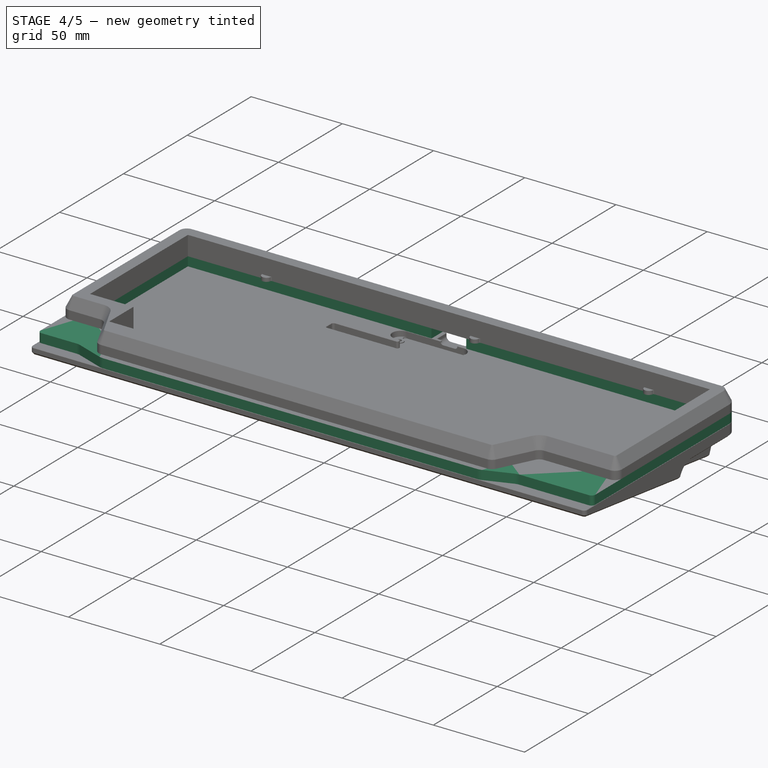
[diagram: stage 4 of 5 — iso view after this stage's code; geometry added in this stage tinted green]
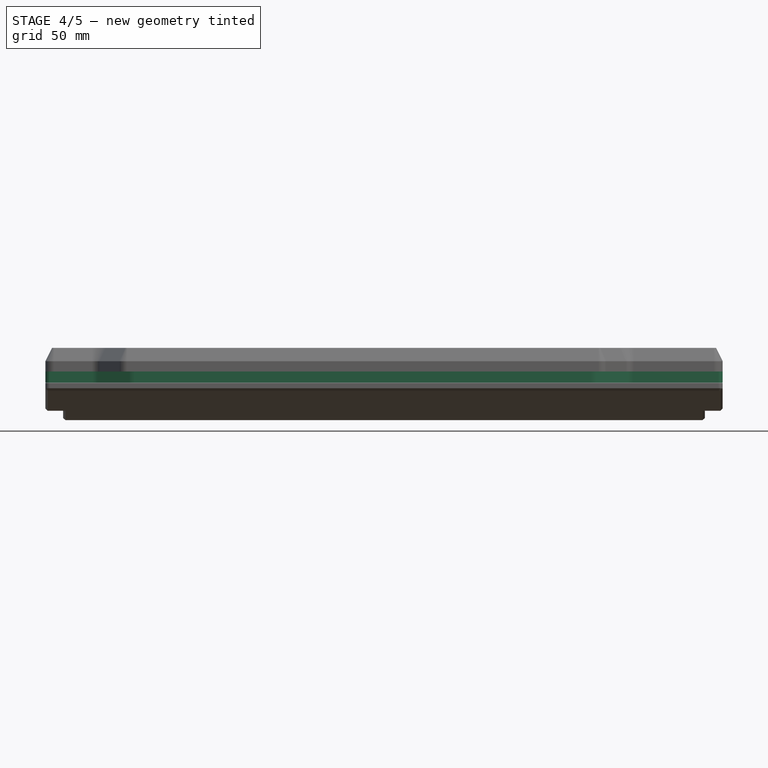
[diagram: stage 4 of 5 — front view after this stage's code; geometry added in this stage tinted green]
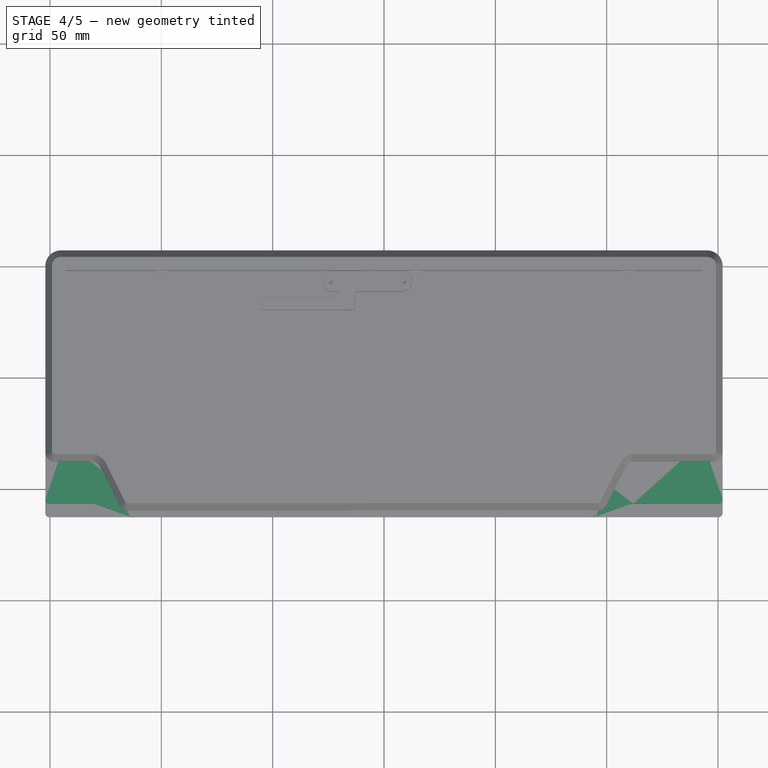
[diagram: stage 4 of 5 — top view after this stage's code; geometry added in this stage tinted green]
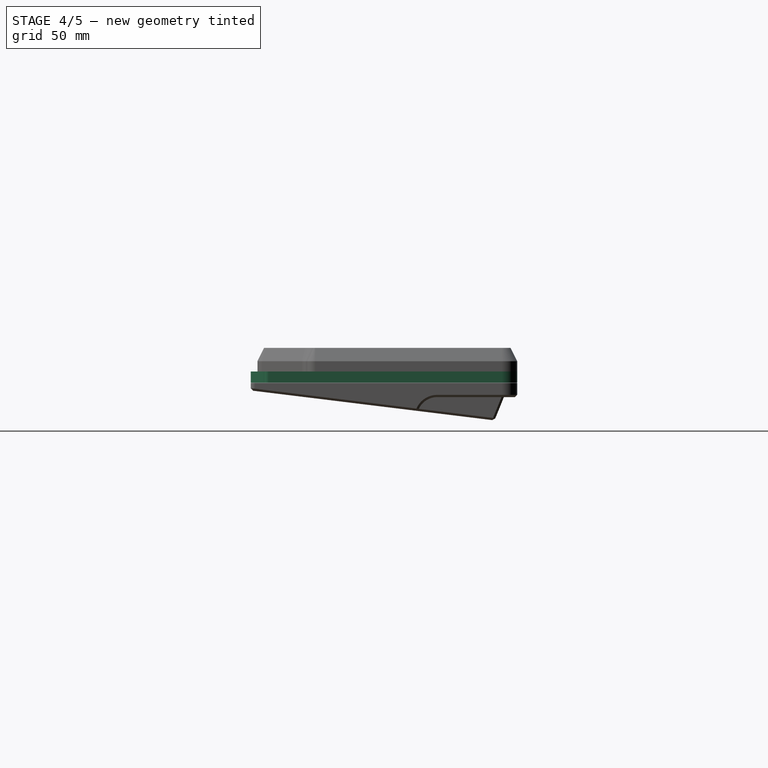
[diagram: stage 4 of 5 — right view after this stage's code; geometry added in this stage tinted green]
FEATURE [Sketcher::SketchObject] Sketch001
  FullyConstrained = true
  MapMode = 5
  Support = -> [XY_Plane003]
  expr: Constraints[32] = Spreadsheet.kp * Spreadsheet.bc + (Spreadsheet.err + Spreadsheet.cw) * 2
  expr: Constraints[36] = Spreadsheet.kp * Spreadsheet.br + (Spreadsheet.err + Spreadsheet.cw) * 2
  expr: Constraints[43] = Spreadsheet.cw
  expr: Constraints[44] = Spreadsheet.cw
  expr: Constraints[45] = Spreadsheet.cw
  expr: Constraints[46] = Spreadsheet.kp
  expr: Constraints[47] = Spreadsheet.kp * 1.25
  expr: Constraints[48] = Spreadsheet.kp * 2.25
  expr: Constraints[49] = Spreadsheet.cw
  expr: Constraints[50] = Spreadsheet.kp
  sketch-geometry (23):
    g0: LineSegment StartX=-9.525 StartY=56.825 StartZ=0 EndX=-9.525 EndY=47.825 EndZ=0
    g1: LineSegment StartX=-9.525 StartY=47.825 StartZ=0 EndX=-143.075 EndY=47.825 EndZ=0
    g2: LineSegment StartX=-143.075 StartY=47.825 StartZ=0 EndX=-143.075 EndY=-28.775 EndZ=0
    g3: LineSegment StartX=-143.075 StartY=-28.775 StartZ=0 EndX=-119.262 EndY=-28.775 EndZ=0
    g4: LineSegment StartX=-119.262 StartY=-28.775 StartZ=0 EndX=-119.262 EndY=-47.825 EndZ=0
    g5: LineSegment StartX=-119.262 StartY=-47.825 StartZ=0 EndX=100.212 EndY=-47.825 EndZ=0
    g6: LineSegment StartX=100.212 StartY=-47.825 StartZ=0 EndX=100.212 EndY=-28.775 EndZ=0
    g7: LineSegment StartX=100.212 StartY=-28.775 StartZ=0 EndX=143.075 EndY=-28.775 EndZ=0
    g8: LineSegment StartX=143.075 StartY=-28.775 StartZ=0 EndX=143.075 EndY=47.825 EndZ=0
    g9: LineSegment StartX=143.075 StartY=47.825 StartZ=0 EndX=9.525 EndY=47.825 EndZ=0
    g10: LineSegment StartX=9.525 StartY=47.825 StartZ=0 EndX=9.525 EndY=56.825 EndZ=0
    g11: LineSegment StartX=9.525 StartY=56.825 StartZ=0 EndX=152.075 EndY=56.825 EndZ=0
    g12: LineSegment StartX=152.075 StartY=56.825 StartZ=0 EndX=152.075 EndY=-56.825 EndZ=0
    g13: LineSegment StartX=152.075 StartY=-56.825 StartZ=0 EndX=-152.075 EndY=-56.825 EndZ=0
    g14: LineSegment StartX=-152.075 StartY=-56.825 StartZ=0 EndX=-152.075 EndY=56.825 EndZ=0
    g15: LineSegment StartX=-152.075 StartY=56.825 StartZ=0 EndX=-9.525 EndY=56.825 EndZ=0
    g16: LineSegment StartX=-152.075 StartY=56.825 StartZ=0 EndX=152.075 EndY=-56.825 EndZ=0
    g17: LineSegment StartX=152.075 StartY=56.825 StartZ=0 EndX=-152.075 EndY=-56.825 EndZ=0
    g18: LineSegment StartX=-152.075 StartY=-56.825 StartZ=0 EndX=-129.747 EndY=-56.825 EndZ=0
    g19: LineSegment StartX=-129.747 StartY=-56.825 StartZ=0 EndX=-113.262 EndY=-62.825 EndZ=0
    g20: LineSegment StartX=-113.262 StartY=-62.825 StartZ=0 EndX=94.2125 EndY=-62.825 EndZ=0
    g21: LineSegment StartX=94.2125 StartY=-62.825 StartZ=0 EndX=110.697 EndY=-56.825 EndZ=0
    g22: LineSegment StartX=110.697 StartY=-56.825 StartZ=0 EndX=152.075 EndY=-56.825 EndZ=0
  constraints (65):
    c: Vertical(g0)
    c: Coincident(g0,g1)
    c: Horizontal(g1)
    c: Coincident(g1,g2)
    c: Vertical(g2)
    c: Coincident(g2,g3)
    c: Horizontal(g3)
    c: Coincident(g3,g4)
    c: Vertical(g4)
    c: Coincident(g4,g5)
    c: Horizontal(g5)
    c: Coincident(g5,g6)
    c: Vertical(g6)
    c: Coincident(g6,g7)
    c: Horizontal(g7)
    c: Coincident(g7,g8)
    c: Vertical(g8)
    c: Coincident(g8,g9)
    c: Horizontal(g9)
    c: Coincident(g9,g10)
    c: Vertical(g10)
    c: Coincident(g10,g11)
    c: Horizontal(g11)
    c: Coincident(g11,g12)
    c: Vertical(g12)
    c: Coincident(g12,g13)
    c: Horizontal(g13)
    c: Coincident(g13,g14)
    c: Vertical(g14)
    c: Coincident(g15,g14)
    c: Coincident(g15,g0)
    c: Horizontal(g15)
    c: Distance(g13) = 304.15
    c: Symmetric(g0,g10,g-2)
    c: PointOnObject(g9,g1)
    c: PointOnObject(g3,g7)
    c: Distance(g14) = 113.65
    c: Coincident(g16,g14)
    c: Coincident(g16,g12)
    c: Coincident(g17,g11)
    c: Coincident(g17,g13)
    c: PointOnObject(g-1,g17)
    c: PointOnObject(g-1,g16)
    c: Distance(g14,g2) = 9
    c: Distance(g1,g15) = 9
    c: Distance(g4,g13) = 9
    c: Distance(g4) = 19.05
    c: Distance(g3) = 23.8125
    c: Distance(g7) = 42.8625
    c: Distance(g8,g12) = 9
    c: Distance(g9,g0) = 19.05
    c: Coincident(g18,g14)
    c: Horizontal(g18)
    c: Coincident(g19,g18)
    c: Coincident(g20,g19)
    c: Horizontal(g20)
    c: Coincident(g21,g20)
    c: Coincident(g22,g21)
    c: Coincident(g22,g12)
    c: Horizontal(g22)
    c: Angle(g20,g19) = 2.79253
    c: Angle(g21,g20) = 2.79253
    c: Distance(g20,g13) = 6
    c: DistanceX(g20,g5) = 6
    c: DistanceX(g4,g19) = 6
FEATURE [PartDesign::Pad] Pad001
  Direction = (0,0,1)
  Length = 5
  Length2 = 100
  Profile = -> Sketch001
  Refine = true
  Reversed = true
  Type = 0
  expr: Length = Spreadsheet.ct
FEATURE [PartDesign::Fillet] Fillet004
  Base = -> Pad001 [Edge41,Edge2,Edge56,Edge53,Edge50,Edge47]
  BaseFeature = -> Pad001
  Radius = 7
  Refine = true
  SupportTransform = false
  UseAllEdges = false
FEATURE [PartDesign::Chamfer] Chamfer005
  Angle = 45
  Base = -> Fillet012 [Face1,Edge46,Edge55]
  BaseFeature = -> Fillet012
  ChamferType = 0
  FlipDirection = false
  Size = 0.2
  Size2 = 1
  SupportTransform = false
  UseAllEdges = false
  expr: Size = Spreadsheet.err
FEATURE [PartDesign::Chamfer] Chamfer006
  Angle = 45
  Base = -> Chamfer005 [Edge122,Edge121,Edge202,Edge203,Edge227,Edge228,Edge204,Edge205,Edge201]
  BaseFeature = -> Chamfer005
  ChamferType = 0
  FlipDirection = false
  Size = 1
  Size2 = 1
  SupportTransform = false
  UseAllEdges = false
FEATURE [PartDesign::Body] Body002
  Group = -> [Sketch002,Pad002,Sketch003,Pad003,Sketch004,Pad004,Sketch005,Pocket,Sketch006,Pocket001,Sketch007,Hole,Sketch016,Pocket002,Sketch017,Pocket003,Fillet011,Fillet012,Chamfer005,Chamfer006,Sketch018,Hole005,Sketch019,Hole006]
  Origin = -> Origin005
  Tip = -> Hole006
FEATURE [App::Part] Part002  label="BottomCase"
  Group = -> [Body002]
  Origin = -> Origin004
FEATURE [PartDesign::Fillet] Fillet013
  Base = -> Fillet004 [Edge3,Edge72]
  BaseFeature = -> Fillet004
  Radius = 2
  SupportTransform = false
  UseAllEdges = false
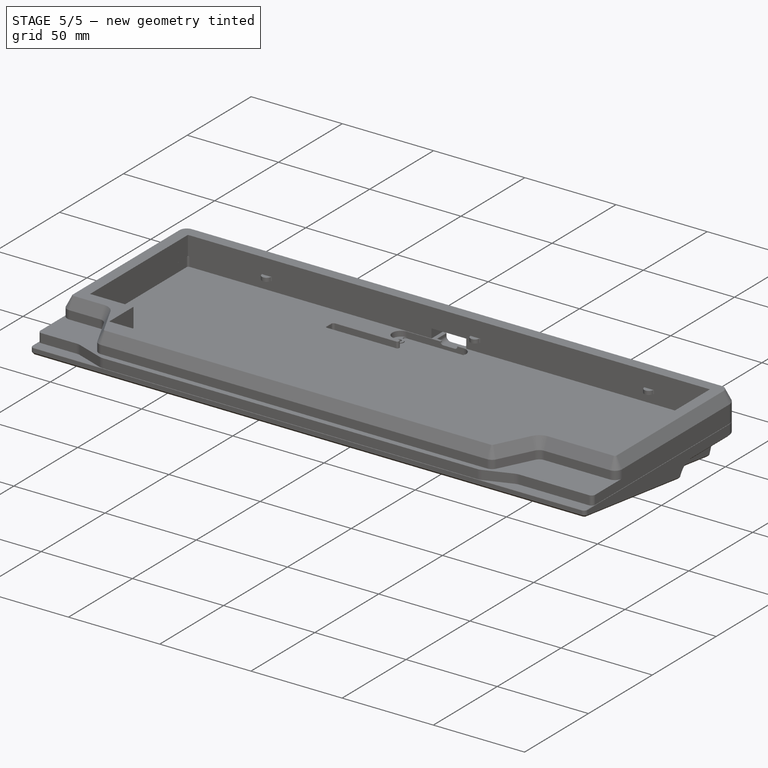
[diagram: stage 5 of 5 — iso view after this stage's code; geometry added in this stage tinted green]
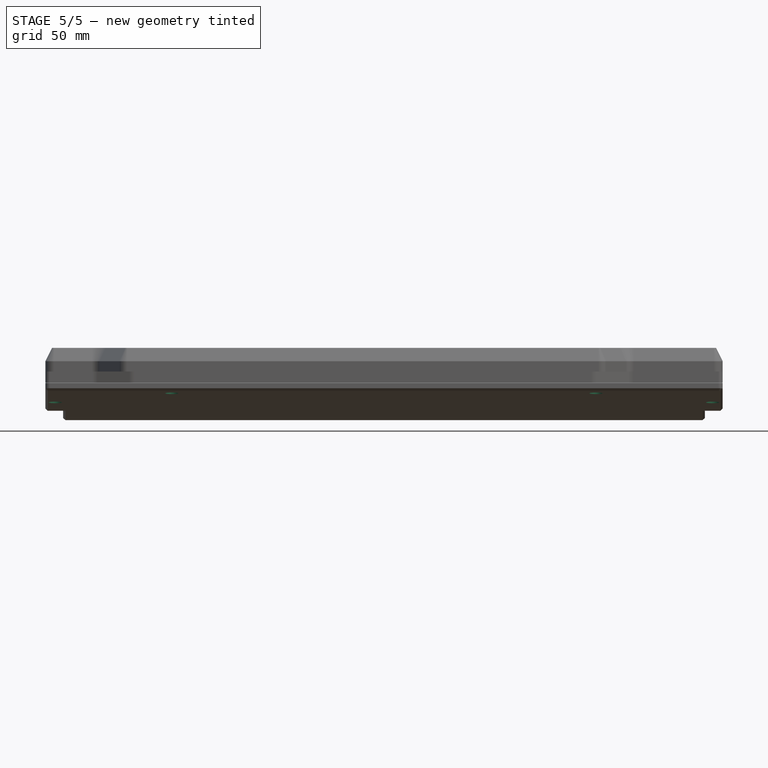
[diagram: stage 5 of 5 — front view after this stage's code; geometry added in this stage tinted green]
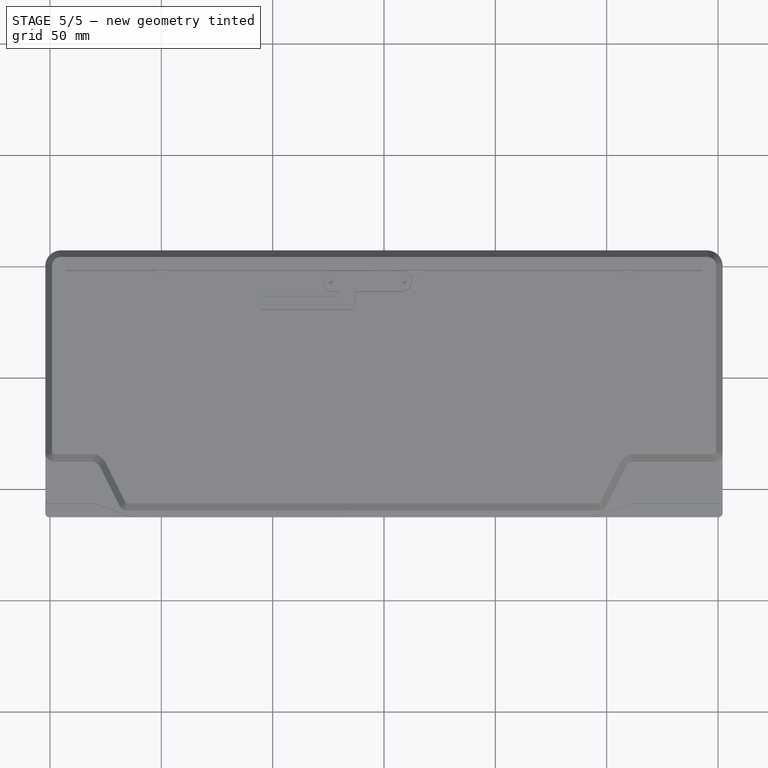
[diagram: stage 5 of 5 — top view after this stage's code; geometry added in this stage tinted green]
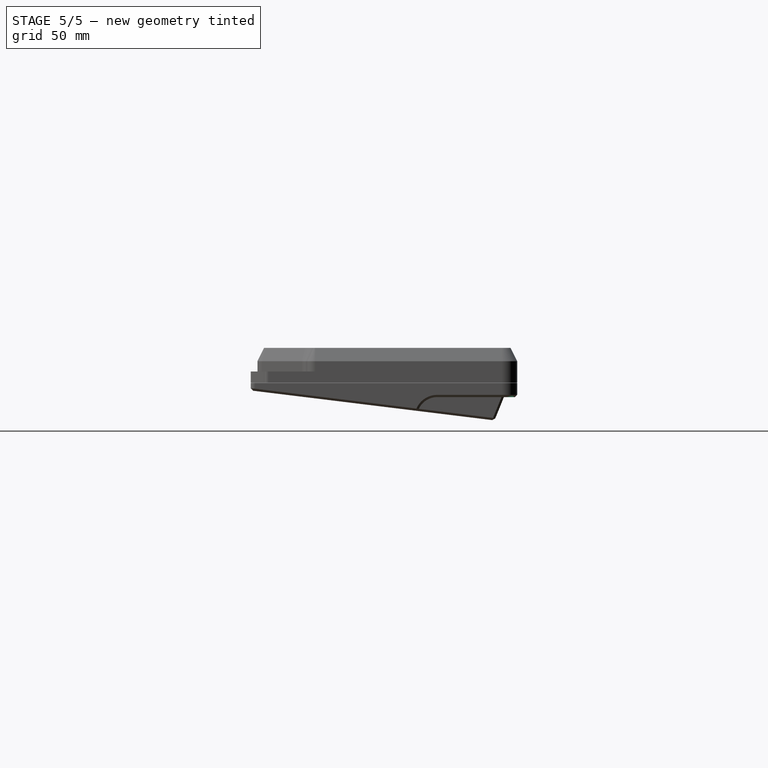
[diagram: stage 5 of 5 — right view after this stage's code; geometry added in this stage tinted green]
FEATURE [Sketcher::SketchObject] Sketch018
  FullyConstrained = false
  MapMode = 5
  Placement = pos=(0,0,-5) rot=(0,0,1;0rad)
  Support = -> [Chamfer006]
  expr: Constraints[4] = Spreadsheet.kp
  expr: Constraints[5] = Spreadsheet.kp
  expr: Constraints[6] = (Spreadsheet.bc * Spreadsheet.kp + Spreadsheet.cw) / 2 + Spreadsheet.err
  expr: Constraints[7] = (Spreadsheet.br * Spreadsheet.kp + Spreadsheet.cw) / 2 + Spreadsheet.err
  expr: Constraints[8] = Spreadsheet.kp * 5
  expr: Constraints[9] = -(Spreadsheet.kp * Spreadsheet.br + Spreadsheet.cw) / 2 - Spreadsheet.err
  sketch-geometry (10):
    g0: Circle CenterX=19.05 CenterY=52.325 CenterZ=0 NormalX=0 NormalY=0 NormalZ=1 AngleXU=0 Radius=8.32257
    g1: Circle CenterX=-19.05 CenterY=52.325 CenterZ=0 NormalX=0 NormalY=0 NormalZ=1 AngleXU=0 Radius=7.99452
    g2: Circle CenterX=147.575 CenterY=52.325 CenterZ=0 NormalX=0 NormalY=0 NormalZ=1 AngleXU=0 Radius=9.6082
    g3: Circle CenterX=147.575 CenterY=-19.05 CenterZ=0 NormalX=0 NormalY=0 NormalZ=1 AngleXU=0 Radius=9.91692
    g4: Circle CenterX=95.25 CenterY=-52.325 CenterZ=0 NormalX=0 NormalY=0 NormalZ=1 AngleXU=0 Radius=16.7533
    g5: Circle CenterX=-95.25 CenterY=-52.325 CenterZ=0 NormalX=0 NormalY=0 NormalZ=1 AngleXU=0 Radius=6.83944
    g6: Circle CenterX=-147.575 CenterY=-19.05 CenterZ=0 NormalX=0 NormalY=0 NormalZ=1 AngleXU=0 Radius=15.7055
    g7: Circle CenterX=-147.575 CenterY=52.325 CenterZ=0 NormalX=0 NormalY=0 NormalZ=1 AngleXU=0 Radius=12.944
    g8: LineSegment StartX=-147.575 StartY=52.325 StartZ=0 EndX=-19.05 EndY=52.325 EndZ=0
    g9: LineSegment StartX=-147.575 StartY=52.325 StartZ=0 EndX=-147.575 EndY=-19.05 EndZ=0
  constraints (16):
    c: Symmetric(g1,g0,g-2)
    c: Symmetric(g7,g2,g-2)
    c: Symmetric(g3,g6,g-2)
    c: Symmetric(g5,g4,g-2)
    c: Distance(g6,g-1) = 19.05
    c: Distance(g0,g-2) = 19.05
    c: Distance(g7,g-2) = 147.575
    c: Distance(g7,g-1) = 52.325
    c: DistanceX(g-2,g4) = 95.25
    c: DistanceY(g-1,g5) = -52.325
    c: Coincident(g8,g7)
    c: Coincident(g8,g1)
    c: Horizontal(g8)
    c: Coincident(g9,g7)
    c: Coincident(g9,g6)
    c: Vertical(g9)
FEATURE [PartDesign::Hole] Hole005
  BaseFeature = -> Chamfer006
  CustomThreadClearance = 0
  Depth = 3
  DepthType = 0
  Diameter = 3.4
  DrillForDepth = false
  DrillPoint = 1
  DrillPointAngle = 118
  HoleCutCountersinkAngle = 90
  HoleCutCustomValues = false
  HoleCutDepth = 0
  HoleCutDiameter = 6.1
  HoleCutType = 0
  ModelThread = false
  Profile = -> Sketch018
  Tapered = false
  TaperedAngle = 90
  ThreadClass = 0
  ThreadDepth = 3
  ThreadDepthType = 0
  ThreadDirection = 0
  ThreadFit = 0
  ThreadSize = 9
  ThreadType = 1
  Threaded = false
  UseCustomThreadClearance = false
FEATURE [Sketcher::SketchObject] Sketch019
  AttachmentOffset = pos=(0,0,-1) rot=(0,0,1;0rad)
  ExternalGeometry = -> [Hole005]
  FullyConstrained = false
  MapMode = 5
  Placement = pos=(0,0,-6) rot=(0,0,1;0rad)
  Support = -> [Hole005]
  sketch-geometry (8):
    g0: Circle CenterX=-147.575 CenterY=52.325 CenterZ=0 NormalX=0 NormalY=0 NormalZ=1 AngleXU=0 Radius=11.5431
    g1: Circle CenterX=-147.575 CenterY=-19.05 CenterZ=0 NormalX=0 NormalY=0 NormalZ=1 AngleXU=0 Radius=11.2593
    g2: Circle CenterX=-95.25 CenterY=-52.325 CenterZ=0 NormalX=0 NormalY=0 NormalZ=1 AngleXU=0 Radius=5.92535
    g3: Circle CenterX=95.25 CenterY=-52.325 CenterZ=0 NormalX=0 NormalY=0 NormalZ=1 AngleXU=0 Radius=6.44024
    g4: Circle CenterX=147.575 CenterY=-19.05 CenterZ=0 NormalX=0 NormalY=0 NormalZ=1 AngleXU=0 Radius=8.73941
    g5: Circle CenterX=147.575 CenterY=52.325 CenterZ=0 NormalX=0 NormalY=0 NormalZ=1 AngleXU=0 Radius=6.58038
    g6: Circle CenterX=19.05 CenterY=52.325 CenterZ=0 NormalX=0 NormalY=0 NormalZ=1 AngleXU=0 Radius=8.4016
    g7: Circle CenterX=-19.05 CenterY=52.325 CenterZ=0 NormalX=0 NormalY=0 NormalZ=1 AngleXU=0 Radius=9.14787
  constraints (8):
    c: Coincident(g0,g-5)
    c: Coincident(g1,g-7)
    c: Coincident(g2,g-8)
    c: Coincident(g3,g-9)
    c: Coincident(g4,g-10)
    c: Coincident(g5,g-3)
    c: Coincident(g6,g-4)
    c: Coincident(g7,g-6)
FEATURE [PartDesign::Hole] Hole006
  BaseFeature = -> Hole005
  CustomThreadClearance = 0
  Depth = 25
  DepthType = 0
  Diameter = 6
  DrillForDepth = false
  DrillPoint = 1
  DrillPointAngle = 118
  HoleCutCountersinkAngle = 90
  HoleCutCustomValues = false
  HoleCutDepth = 0
  HoleCutDiameter = 6.1
  HoleCutType = 0
  ModelThread = false
  Profile = -> Sketch019
  Tapered = false
  TaperedAngle = 90
  ThreadClass = 0
  ThreadDepth = 25
  ThreadDepthType = 0
  ThreadDirection = 0
  ThreadFit = 0
  ThreadSize = 0
  ThreadType = 0
  Threaded = false
  UseCustomThreadClearance = false
FEATURE [PartDesign::Fillet] Fillet005
  Base = -> Fillet013 [Edge80,Edge66,Edge68,Edge72,Edge74,Edge78]
  BaseFeature = -> Fillet013
  Radius = 1
  Refine = true
  SupportTransform = false
  UseAllEdges = false
FEATURE [PartDesign::Fillet] Fillet006
  Base = -> Fillet005 [Edge70,Edge50]
  BaseFeature = -> Fillet005
  Radius = 1.2
  Refine = true
  SupportTransform = false
  UseAllEdges = false
FEATURE [Sketcher::SketchObject] Sketch014
  ExternalGeometry = -> [Fillet006]
  FullyConstrained = false
  MapMode = 5
  Support = -> [Fillet006]
  expr: Constraints[10] = Spreadsheet.cw / 2
  expr: Constraints[11] = Spreadsheet.cw / 2
  expr: Constraints[3] = Spreadsheet.kp
  expr: Constraints[4] = Spreadsheet.kp * 5
  expr: Constraints[5] = Spreadsheet.kp
  expr: Constraints[7] = Spreadsheet.cw / 2
  expr: Constraints[8] = Spreadsheet.cw / 2
  expr: Constraints[9] = Spreadsheet.cw / 2
  sketch-geometry (8):
    g0: Circle CenterX=147.575 CenterY=52.325 CenterZ=0 NormalX=0 NormalY=0 NormalZ=1 AngleXU=0 Radius=18.7929
    g1: Circle CenterX=147.575 CenterY=-19.05 CenterZ=0 NormalX=0 NormalY=0 NormalZ=1 AngleXU=0 Radius=10.1507
    g2: Circle CenterX=95.25 CenterY=-52.325 CenterZ=0 NormalX=0 NormalY=0 NormalZ=1 AngleXU=0 Radius=10.3516
    g3: Circle CenterX=-95.25 CenterY=-52.325 CenterZ=0 NormalX=0 NormalY=0 NormalZ=1 AngleXU=0 Radius=18.3317
    g4: Circle CenterX=-147.575 CenterY=-19.05 CenterZ=0 NormalX=0 NormalY=0 NormalZ=1 AngleXU=0 Radius=19.907
    g5: Circle CenterX=-147.575 CenterY=52.325 CenterZ=0 NormalX=0 NormalY=0 NormalZ=1 AngleXU=0 Radius=2.6
    g6: Circle CenterX=-19.05 CenterY=52.325 CenterZ=0 NormalX=0 NormalY=0 NormalZ=1 AngleXU=0 Radius=9.28614
    g7: Circle CenterX=19.05 CenterY=52.325 CenterZ=0 NormalX=0 NormalY=0 NormalZ=1 AngleXU=0 Radius=7.89258
  constraints (12):
    c: Symmetric(g5,g0,g-2)
    c: Symmetric(g4,g1,g-2)
    c: Symmetric(g3,g2,g-2)
    c: Distance(g4,g-1) = 19.05
    c: Distance(g3,g-2) = 95.25
    c: Distance(g6,g-2) = 19.05
    c: Symmetric(g6,g7,g-2)
    c: Distance(g4,g-3) = 4.5
    c: Distance(g5,g-4) = 4.5
    c: Distance(g5,g-3) = 4.5
    c: Distance(g6,g-4) = 4.5
    c: Distance(g3,g-5) = 4.5
FEATURE [PartDesign::Hole] Hole003
  BaseFeature = -> Fillet006
  CustomThreadClearance = 0
  Depth = 25
  DepthType = 0
  Diameter = 3.4
  DrillForDepth = false
  DrillPoint = 1
  DrillPointAngle = 118
  HoleCutCountersinkAngle = 90
  HoleCutCustomValues = false
  HoleCutDepth = 0
  HoleCutDiameter = 6.1
  HoleCutType = 0
  ModelThread = false
  Profile = -> Sketch014
  Refine = true
  Tapered = false
  TaperedAngle = 90
  ThreadClass = 0
  ThreadDepth = 23.5
  ThreadDepthType = 0
  ThreadDirection = 0
  ThreadFit = 0
  ThreadSize = 9
  ThreadType = 1
  Threaded = false
  UseCustomThreadClearance = false
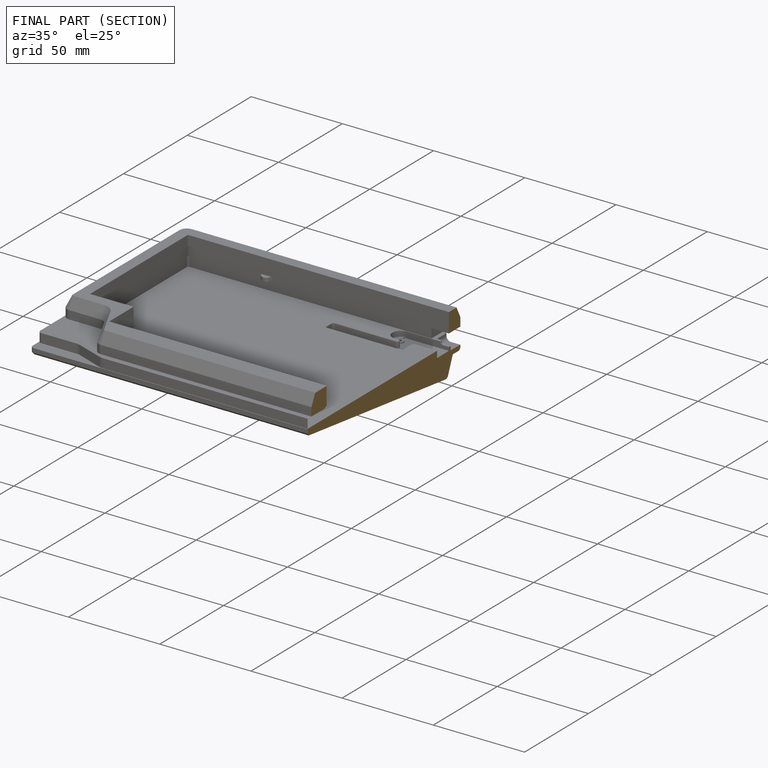
[diagram: finished part — half-section view (interior)]
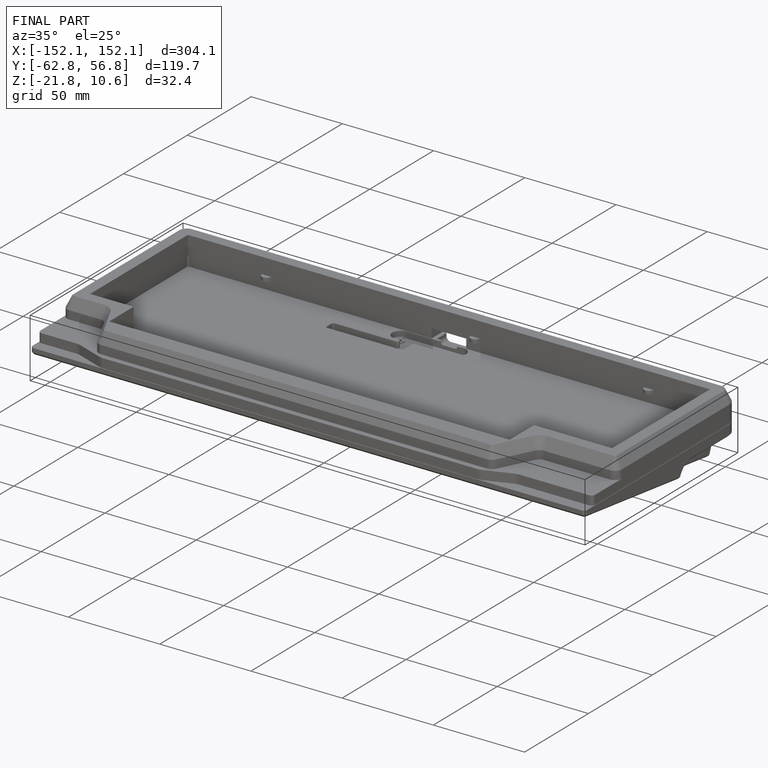
[diagram: finished part — iso view with bounding-box wireframe]
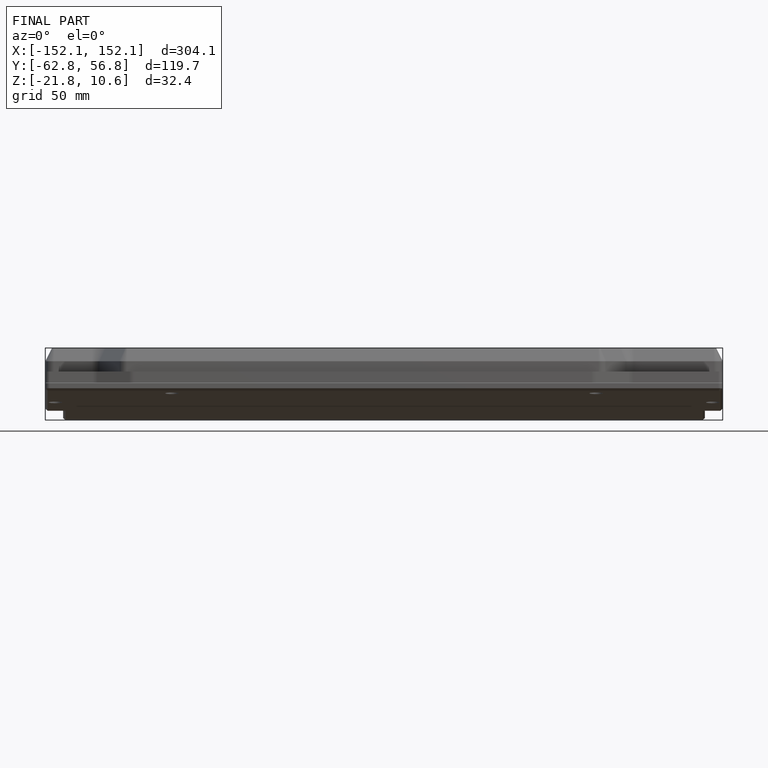
[diagram: finished part — front view with bounding-box wireframe]
